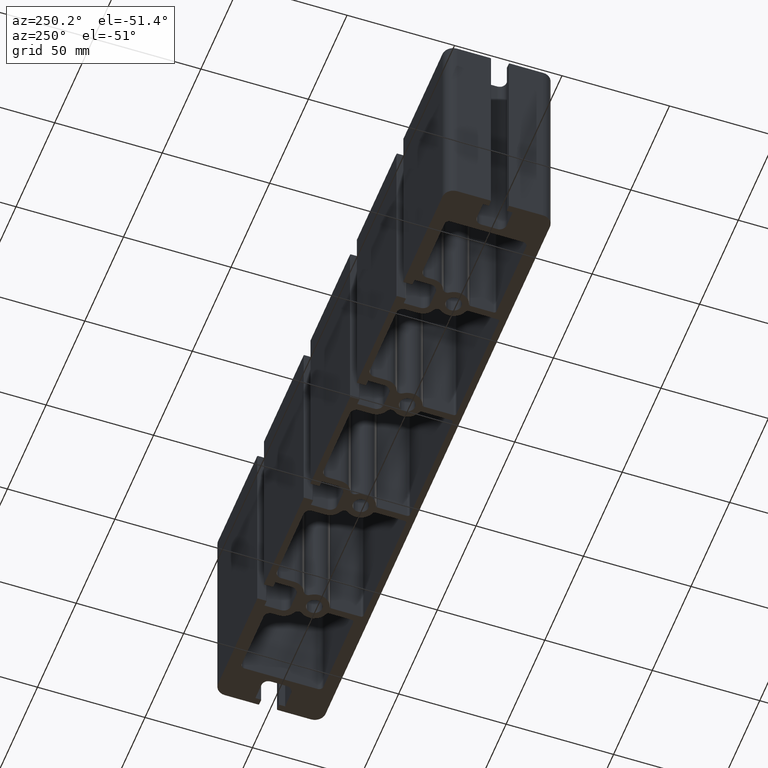
[diagram: clean part render]
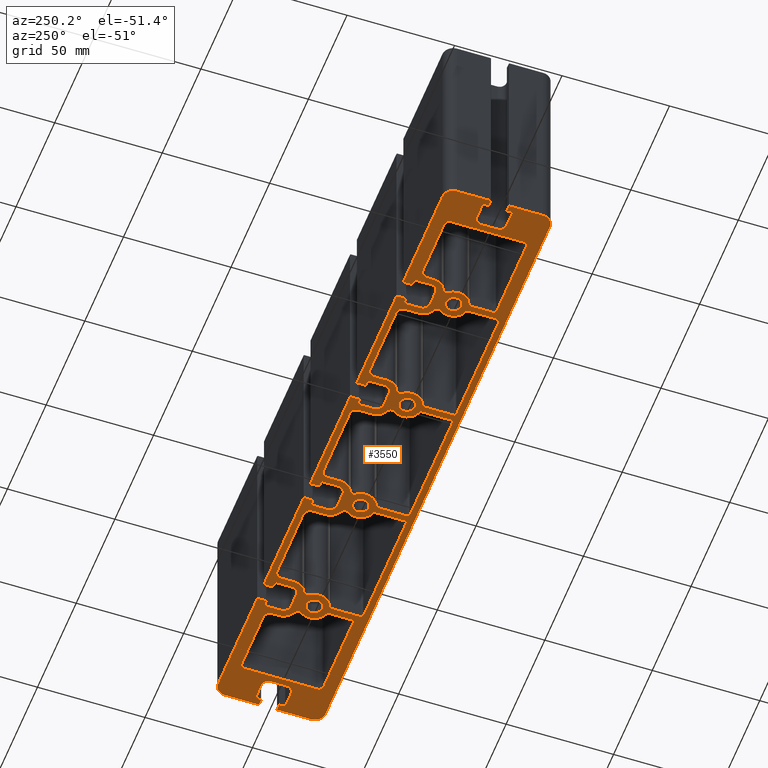
[diagram: same view with one face highlighted and labeled with its STEP entity id]
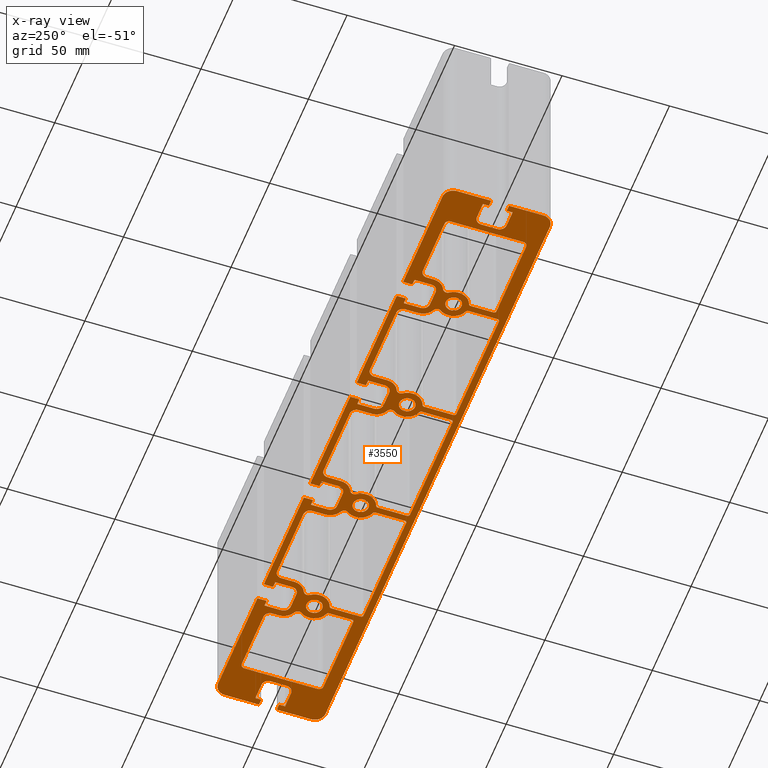
[diagram: x-ray of the same camera — body ghosted, the highlighted face saturated]
A machine part, auxiliary view. The second image highlights one B-rep face of the part: STEP entity #3550.
The next image is the same camera in x-ray: the body ghosted, the highlighted face saturated — about 0% of this face is hidden behind the body in this view.
In plain terms, the highlighted planar face has unit normal (0, 0, 1).
Its self-contained STEP definition (entity closure, byte-faithful):
#28=FACE_BOUND('',#488,.T.);
#29=FACE_BOUND('',#489,.T.);
#30=FACE_BOUND('',#490,.T.);
#31=FACE_BOUND('',#491,.T.);
#32=FACE_BOUND('',#492,.T.);
#33=FACE_BOUND('',#493,.T.);
#34=FACE_BOUND('',#494,.T.);
#35=FACE_BOUND('',#495,.T.);
#36=FACE_BOUND('',#496,.T.);
#118=PLANE('',#3922);
#296=FACE_OUTER_BOUND('',#487,.T.);
#487=EDGE_LOOP('',(#3101,#3102,#3103,#3104,#3105,#3106,#3107,#3108,#3109,
#3110,#3111,#3112,#3113,#3114,#3115,#3116,#3117,#3118,#3119,#3120,#3121,
#3122,#3123,#3124,#3125,#3126,#3127,#3128,#3129,#3130,#3131,#3132,#3133,
#3134,#3135,#3136,#3137,#3138,#3139,#3140,#3141,#3142,#3143,#3144,#3145,
#3146,#3147,#3148,#3149,#3150,#3151,#3152,#3153,#3154,#3155,#3156,#3157,
#3158,#3159,#3160,#3161,#3162,#3163,#3164,#3165,#3166,#3167,#3168,#3169,
#3170,#3171,#3172,#3173,#3174,#3175,#3176,#3177,#3178,#3179,#3180,#3181,
#3182,#3183,#3184,#3185,#3186,#3187,#3188,#3189,#3190,#3191,#3192));
#488=EDGE_LOOP('',(#3193,#3194,#3195,#3196,#3197,#3198,#3199,#3200,#3201,
#3202,#3203,#3204,#3205,#3206,#3207,#3208,#3209,#3210));
#489=EDGE_LOOP('',(#3211,#3212,#3213,#3214,#3215,#3216,#3217,#3218,#3219,
#3220,#3221,#3222,#3223,#3224,#3225,#3226,#3227,#3228));
#490=EDGE_LOOP('',(#3229,#3230,#3231,#3232,#3233,#3234,#3235,#3236,#3237,
#3238,#3239,#3240,#3241,#3242,#3243,#3244,#3245,#3246));
#491=EDGE_LOOP('',(#3247,#3248,#3249,#3250,#3251,#3252,#3253,#3254,#3255,
#3256,#3257,#3258,#3259));
#492=EDGE_LOOP('',(#3260,#3261,#3262,#3263,#3264,#3265,#3266,#3267,#3268,
#3269,#3270,#3271,#3272));
#493=EDGE_LOOP('',(#3273));
#494=EDGE_LOOP('',(#3274));
#495=EDGE_LOOP('',(#3275));
#496=EDGE_LOOP('',(#3276));
#501=LINE('',#5021,#833);
#505=LINE('',#5033,#837);
#509=LINE('',#5045,#841);
#516=LINE('',#5075,#848);
#520=LINE('',#5087,#852);
#524=LINE('',#5099,#856);
#527=LINE('',#5109,#859);
#532=LINE('',#5123,#864);
#536=LINE('',#5135,#868);
#543=LINE('',#5165,#875);
#547=LINE('',#5177,#879);
#551=LINE('',#5189,#883);
#557=LINE('',#5217,#889);
#562=LINE('',#5231,#894);
#566=LINE('',#5243,#898);
#573=LINE('',#5273,#905);
#577=LINE('',#5285,#909);
#581=LINE('',#5297,#913);
#589=LINE('',#5333,#921);
#593=LINE('',#5345,#925);
#600=LINE('',#5375,#932);
#604=LINE('',#5387,#936);
#608=LINE('',#5398,#940);
#610=LINE('',#5403,#942);
#615=LINE('',#5417,#947);
#619=LINE('',#5429,#951);
#626=LINE('',#5459,#958);
#630=LINE('',#5471,#962);
#633=LINE('',#5501,#965);
#638=LINE('',#5515,#970);
#642=LINE('',#5527,#974);
#645=LINE('',#5533,#977);
#649=LINE('',#5545,#981);
#653=LINE('',#5557,#985);
#656=LINE('',#5563,#988);
#660=LINE('',#5575,#992);
#664=LINE('',#5587,#996);
#668=LINE('',#5599,#1000);
#672=LINE('',#5611,#1004);
#675=LINE('',#5617,#1007);
#679=LINE('',#5629,#1011);
#683=LINE('',#5641,#1015);
#686=LINE('',#5647,#1018);
#690=LINE('',#5659,#1022);
#694=LINE('',#5671,#1026);
#698=LINE('',#5683,#1030);
#702=LINE('',#5695,#1034);
#705=LINE('',#5701,#1037);
#709=LINE('',#5713,#1041);
#713=LINE('',#5725,#1045);
#716=LINE('',#5731,#1048);
#720=LINE('',#5743,#1052);
#724=LINE('',#5755,#1056);
#728=LINE('',#5767,#1060);
#732=LINE('',#5779,#1064);
#735=LINE('',#5785,#1067);
#739=LINE('',#5797,#1071);
#743=LINE('',#5809,#1075);
#746=LINE('',#5815,#1078);
#750=LINE('',#5827,#1082);
#754=LINE('',#5839,#1086);
#758=LINE('',#5851,#1090);
#762=LINE('',#5863,#1094);
#766=LINE('',#5875,#1098);
#769=LINE('',#5881,#1101);
#773=LINE('',#5893,#1105);
#777=LINE('',#5905,#1109);
#780=LINE('',#5911,#1112);
#784=LINE('',#5923,#1116);
#788=LINE('',#5935,#1120);
#792=LINE('',#5947,#1124);
#796=LINE('',#5959,#1128);
#800=LINE('',#5971,#1132);
#804=LINE('',#5983,#1136);
#807=LINE('',#5989,#1139);
#811=LINE('',#6001,#1143);
#815=LINE('',#6013,#1147);
#818=LINE('',#6019,#1150);
#822=LINE('',#6031,#1154);
#826=LINE('',#6043,#1158);
#833=VECTOR('',#3949,13.6642996244392);
#837=VECTOR('',#3961,54.9999999999998);
#841=VECTOR('',#3973,13.664299624439);
#848=VECTOR('',#4006,6.10000000000039);
#852=VECTOR('',#4018,34.);
#856=VECTOR('',#4030,6.10000000000035);
#859=VECTOR('',#4041,13.6642996244392);
#864=VECTOR('',#4054,54.9999999999999);
#868=VECTOR('',#4066,13.6642996244387);
#875=VECTOR('',#4099,6.10000000000033);
#879=VECTOR('',#4111,34.0000000000001);
#883=VECTOR('',#4123,6.10000000000046);
#889=VECTOR('',#4155,6.10000000000035);
#894=VECTOR('',#4168,34.0000000000018);
#898=VECTOR('',#4180,6.10000000000035);
#905=VECTOR('',#4213,13.6642996244391);
#909=VECTOR('',#4225,55.0000000000018);
#913=VECTOR('',#4237,13.664299624439);
#921=VECTOR('',#4277,38.4999999999999);
#925=VECTOR('',#4289,10.6642996244388);
#932=VECTOR('',#4322,3.10000000000061);
#936=VECTOR('',#4334,28.0000000000002);
#940=VECTOR('',#4346,34.);
#942=VECTOR('',#4350,34.);
#947=VECTOR('',#4363,28.);
#951=VECTOR('',#4375,3.10000000000029);
#958=VECTOR('',#4408,10.6642996244391);
#962=VECTOR('',#4420,38.5000000000001);
#965=VECTOR('',#4455,50.5499999999993);
#970=VECTOR('',#4468,3.70000000000074);
#974=VECTOR('',#4480,2.44999999999715);
#977=VECTOR('',#4485,7.80000000000101);
#981=VECTOR('',#4497,7.40000000000148);
#985=VECTOR('',#4509,7.80000000000122);
#988=VECTOR('',#4514,2.45000000000068);
#992=VECTOR('',#4526,3.70000000000072);
#996=VECTOR('',#4538,51.1000000000003);
#1000=VECTOR('',#4550,3.70000000000083);
#1004=VECTOR('',#4562,2.44999999999889);
#1007=VECTOR('',#4567,7.80000000000111);
#1011=VECTOR('',#4579,7.40000000000151);
#1015=VECTOR('',#4591,7.80000000000076);
#1018=VECTOR('',#4596,2.44999999999889);
#1022=VECTOR('',#4608,3.70000000000083);
#1026=VECTOR('',#4620,51.0999999999985);
#1030=VECTOR('',#4632,3.70000000000065);
#1034=VECTOR('',#4644,2.44999999999891);
#1037=VECTOR('',#4649,7.80000000000109);
#1041=VECTOR('',#4661,7.40000000000141);
#1045=VECTOR('',#4673,7.8000000000012);
#1048=VECTOR('',#4678,2.44999999999884);
#1052=VECTOR('',#4690,3.70000000000076);
#1056=VECTOR('',#4702,51.0999999999986);
#1060=VECTOR('',#4714,3.70000000000063);
#1064=VECTOR('',#4726,2.44999999999873);
#1067=VECTOR('',#4731,7.80000000000117);
#1071=VECTOR('',#4743,7.40000000000158);
#1075=VECTOR('',#4755,7.80000000000108);
#1078=VECTOR('',#4760,2.44999999999884);
#1082=VECTOR('',#4772,3.70000000000074);
#1086=VECTOR('',#4784,50.5499999999992);
#1090=VECTOR('',#4796,15.5499999999991);
#1094=VECTOR('',#4808,2.40009839999942);
#1098=VECTOR('',#4820,2.44999999999877);
#1101=VECTOR('',#4825,7.80000000000115);
#1105=VECTOR('',#4837,7.40000000000158);
#1109=VECTOR('',#4849,7.80000000000108);
#1112=VECTOR('',#4854,2.45000000000069);
#1116=VECTOR('',#4866,2.40009839999956);
#1120=VECTOR('',#4878,15.5499999999993);
#1124=VECTOR('',#4890,290.000000000002);
#1128=VECTOR('',#4902,15.5499999999992);
#1132=VECTOR('',#4914,2.40009840000136);
#1136=VECTOR('',#4926,2.45000000000069);
#1139=VECTOR('',#4931,7.79999999999927);
#1143=VECTOR('',#4943,7.40000000000151);
#1147=VECTOR('',#4955,7.79999999999934);
#1150=VECTOR('',#4960,2.44999999999893);
#1154=VECTOR('',#4972,2.40009840000125);
#1158=VECTOR('',#4984,15.5499999999993);
#1161=CIRCLE('',#3554,2.);
#1163=CIRCLE('',#3557,6.75000000000194);
#1165=CIRCLE('',#3560,0.99999999999811);
#1167=CIRCLE('',#3564,1.);
#1169=CIRCLE('',#3568,1.);
#1171=CIRCLE('',#3572,1.);
#1173=CIRCLE('',#3575,6.75000000000116);
#1175=CIRCLE('',#3578,2.);
#1177=CIRCLE('',#3581,6.29999999999928);
#1179=CIRCLE('',#3585,3.);
#1181=CIRCLE('',#3589,3.);
#1183=CIRCLE('',#3593,6.3);
#1185=CIRCLE('',#3597,1.);
#1187=CIRCLE('',#3601,1.);
#1189=CIRCLE('',#3605,1.);
#1191=CIRCLE('',#3608,6.7500000000007);
#1193=CIRCLE('',#3611,2.);
#1195=CIRCLE('',#3614,6.29999999999928);
#1197=CIRCLE('',#3618,3.);
#1199=CIRCLE('',#3622,3.);
#1201=CIRCLE('',#3626,6.3);
#1203=CIRCLE('',#3629,2.);
#1205=CIRCLE('',#3632,6.750000000002);
#1207=CIRCLE('',#3635,1.);
#1209=CIRCLE('',#3639,3.);
#1211=CIRCLE('',#3643,3.);
#1213=CIRCLE('',#3647,6.29999999999932);
#1215=CIRCLE('',#3650,2.);
#1217=CIRCLE('',#3653,6.75000000000182);
#1219=CIRCLE('',#3656,1.);
#1221=CIRCLE('',#3660,1.);
#1223=CIRCLE('',#3664,1.);
#1225=CIRCLE('',#3668,1.);
#1227=CIRCLE('',#3671,6.75000000000081);
#1229=CIRCLE('',#3674,2.);
#1231=CIRCLE('',#3677,6.3);
#1233=CIRCLE('',#3680,2.);
#1235=CIRCLE('',#3684,1.);
#1237=CIRCLE('',#3688,1.00000000000257);
#1239=CIRCLE('',#3691,6.7499999999987);
#1241=CIRCLE('',#3694,2.);
#1243=CIRCLE('',#3697,6.3);
#1245=CIRCLE('',#3701,3.);
#1247=CIRCLE('',#3705,2.);
#1249=CIRCLE('',#3710,2.);
#1251=CIRCLE('',#3714,3.);
#1253=CIRCLE('',#3718,6.2999999999993);
#1255=CIRCLE('',#3721,2.);
#1257=CIRCLE('',#3724,6.75000000000072);
#1259=CIRCLE('',#3727,1.);
#1261=CIRCLE('',#3731,1.);
#1263=CIRCLE('',#3735,2.);
#1266=CIRCLE('',#3739,3.65);
#1268=CIRCLE('',#3742,3.65);
#1270=CIRCLE('',#3745,3.65);
#1272=CIRCLE('',#3748,3.6);
#1273=CIRCLE('',#3751,0.3);
#1275=CIRCLE('',#3755,0.3);
#1277=CIRCLE('',#3760,3.19999999999891);
#1279=CIRCLE('',#3764,3.2);
#1281=CIRCLE('',#3769,0.299999999999274);
#1283=CIRCLE('',#3773,0.3);
#1285=CIRCLE('',#3777,0.299999999999272);
#1287=CIRCLE('',#3781,0.3);
#1289=CIRCLE('',#3786,3.2);
#1291=CIRCLE('',#3790,3.20000000000073);
#1293=CIRCLE('',#3795,0.299999999999274);
#1295=CIRCLE('',#3799,0.3);
#1297=CIRCLE('',#3803,0.299999999999272);
#1299=CIRCLE('',#3807,0.3);
#1301=CIRCLE('',#3812,3.20000000000075);
#1303=CIRCLE('',#3816,3.20000000000073);
#1305=CIRCLE('',#3821,0.299999999999274);
#1307=CIRCLE('',#3825,0.3);
#1309=CIRCLE('',#3829,0.299999999999272);
#1311=CIRCLE('',#3833,0.299999999999274);
#1313=CIRCLE('',#3838,3.2);
#1315=CIRCLE('',#3842,3.1999999999989);
#1317=CIRCLE('',#3847,0.300000000001077);
#1319=CIRCLE('',#3851,0.299999999999272);
#1321=CIRCLE('',#3855,5.);
#1323=CIRCLE('',#3859,0.299999999999272);
#1325=CIRCLE('',#3863,0.3);
#1327=CIRCLE('',#3868,3.20000000000075);
#1329=CIRCLE('',#3872,3.20000000000073);
#1331=CIRCLE('',#3877,0.299999999999272);
#1333=CIRCLE('',#3881,0.299999999999265);
#1335=CIRCLE('',#3885,5.);
#1337=CIRCLE('',#3889,5.);
#1339=CIRCLE('',#3893,0.3);
#1341=CIRCLE('',#3897,0.3);
#1343=CIRCLE('',#3902,3.2);
#1345=CIRCLE('',#3906,3.2);
#1347=CIRCLE('',#3911,0.3);
#1349=CIRCLE('',#3915,0.3);
#1351=CIRCLE('',#3919,5.);
#1353=VERTEX_POINT('',#4999);
#1354=VERTEX_POINT('',#5000);
#1357=VERTEX_POINT('',#5008);
#1359=VERTEX_POINT('',#5014);
#1361=VERTEX_POINT('',#5020);
#1363=VERTEX_POINT('',#5026);
#1365=VERTEX_POINT('',#5032);
#1367=VERTEX_POINT('',#5038);
#1369=VERTEX_POINT('',#5044);
#1371=VERTEX_POINT('',#5050);
#1373=VERTEX_POINT('',#5056);
#1375=VERTEX_POINT('',#5062);
#1377=VERTEX_POINT('',#5068);
#1379=VERTEX_POINT('',#5074);
#1381=VERTEX_POINT('',#5080);
#1383=VERTEX_POINT('',#5086);
#1385=VERTEX_POINT('',#5092);
#1387=VERTEX_POINT('',#5098);
#1389=VERTEX_POINT('',#5107);
#1390=VERTEX_POINT('',#5108);
#1393=VERTEX_POINT('',#5116);
#1395=VERTEX_POINT('',#5122);
#1397=VERTEX_POINT('',#5128);
#1399=VERTEX_POINT('',#5134);
#1401=VERTEX_POINT('',#5140);
#1403=VERTEX_POINT('',#5146);
#1405=VERTEX_POINT('',#5152);
#1407=VERTEX_POINT('',#5158);
#1409=VERTEX_POINT('',#5164);
#1411=VERTEX_POINT('',#5170);
#1413=VERTEX_POINT('',#5176);
#1415=VERTEX_POINT('',#5182);
#1417=VERTEX_POINT('',#5188);
#1419=VERTEX_POINT('',#5194);
#1421=VERTEX_POINT('',#5200);
#1423=VERTEX_POINT('',#5206);
#1425=VERTEX_POINT('',#5215);
#1426=VERTEX_POINT('',#5216);
#1429=VERTEX_POINT('',#5224);
#1431=VERTEX_POINT('',#5230);
#1433=VERTEX_POINT('',#5236);
#1435=VERTEX_POINT('',#5242);
#1437=VERTEX_POINT('',#5248);
#1439=VERTEX_POINT('',#5254);
#1441=VERTEX_POINT('',#5260);
#1443=VERTEX_POINT('',#5266);
#1445=VERTEX_POINT('',#5272);
#1447=VERTEX_POINT('',#5278);
#1449=VERTEX_POINT('',#5284);
#1451=VERTEX_POINT('',#5290);
#1453=VERTEX_POINT('',#5296);
#1455=VERTEX_POINT('',#5302);
#1457=VERTEX_POINT('',#5308);
#1459=VERTEX_POINT('',#5314);
#1461=VERTEX_POINT('',#5323);
#1462=VERTEX_POINT('',#5324);
#1465=VERTEX_POINT('',#5332);
#1467=VERTEX_POINT('',#5338);
#1469=VERTEX_POINT('',#5344);
#1471=VERTEX_POINT('',#5350);
#1473=VERTEX_POINT('',#5356);
#1475=VERTEX_POINT('',#5362);
#1477=VERTEX_POINT('',#5368);
#1479=VERTEX_POINT('',#5374);
#1481=VERTEX_POINT('',#5380);
#1483=VERTEX_POINT('',#5386);
#1485=VERTEX_POINT('',#5392);
#1487=VERTEX_POINT('',#5401);
#1488=VERTEX_POINT('',#5402);
#1491=VERTEX_POINT('',#5410);
#1493=VERTEX_POINT('',#5416);
#1495=VERTEX_POINT('',#5422);
#1497=VERTEX_POINT('',#5428);
#1499=VERTEX_POINT('',#5434);
#1501=VERTEX_POINT('',#5440);
#1503=VERTEX_POINT('',#5446);
#1505=VERTEX_POINT('',#5452);
#1507=VERTEX_POINT('',#5458);
#1509=VERTEX_POINT('',#5464);
#1511=VERTEX_POINT('',#5470);
#1514=VERTEX_POINT('',#5481);
#1516=VERTEX_POINT('',#5486);
#1518=VERTEX_POINT('',#5491);
#1520=VERTEX_POINT('',#5496);
#1521=VERTEX_POINT('',#5499);
#1522=VERTEX_POINT('',#5500);
#1525=VERTEX_POINT('',#5508);
#1527=VERTEX_POINT('',#5514);
#1529=VERTEX_POINT('',#5520);
#1531=VERTEX_POINT('',#5526);
#1533=VERTEX_POINT('',#5532);
#1535=VERTEX_POINT('',#5538);
#1537=VERTEX_POINT('',#5544);
#1539=VERTEX_POINT('',#5550);
#1541=VERTEX_POINT('',#5556);
#1543=VERTEX_POINT('',#5562);
#1545=VERTEX_POINT('',#5568);
#1547=VERTEX_POINT('',#5574);
#1549=VERTEX_POINT('',#5580);
#1551=VERTEX_POINT('',#5586);
#1553=VERTEX_POINT('',#5592);
#1555=VERTEX_POINT('',#5598);
#1557=VERTEX_POINT('',#5604);
#1559=VERTEX_POINT('',#5610);
#1561=VERTEX_POINT('',#5616);
#1563=VERTEX_POINT('',#5622);
#1565=VERTEX_POINT('',#5628);
#1567=VERTEX_POINT('',#5634);
#1569=VERTEX_POINT('',#5640);
#1571=VERTEX_POINT('',#5646);
#1573=VERTEX_POINT('',#5652);
#1575=VERTEX_POINT('',#5658);
#1577=VERTEX_POINT('',#5664);
#1579=VERTEX_POINT('',#5670);
#1581=VERTEX_POINT('',#5676);
#1583=VERTEX_POINT('',#5682);
#1585=VERTEX_POINT('',#5688);
#1587=VERTEX_POINT('',#5694);
#1589=VERTEX_POINT('',#5700);
#1591=VERTEX_POINT('',#5706);
#1593=VERTEX_POINT('',#5712);
#1595=VERTEX_POINT('',#5718);
#1597=VERTEX_POINT('',#5724);
#1599=VERTEX_POINT('',#5730);
#1601=VERTEX_POINT('',#5736);
#1603=VERTEX_POINT('',#5742);
#1605=VERTEX_POINT('',#5748);
#1607=VERTEX_POINT('',#5754);
#1609=VERTEX_POINT('',#5760);
#1611=VERTEX_POINT('',#5766);
#1613=VERTEX_POINT('',#5772);
#1615=VERTEX_POINT('',#5778);
#1617=VERTEX_POINT('',#5784);
#1619=VERTEX_POINT('',#5790);
#1621=VERTEX_POINT('',#5796);
#1623=VERTEX_POINT('',#5802);
#1625=VERTEX_POINT('',#5808);
#1627=VERTEX_POINT('',#5814);
#1629=VERTEX_POINT('',#5820);
#1631=VERTEX_POINT('',#5826);
#1633=VERTEX_POINT('',#5832);
#1635=VERTEX_POINT('',#5838);
#1637=VERTEX_POINT('',#5844);
#1639=VERTEX_POINT('',#5850);
#1641=VERTEX_POINT('',#5856);
#1643=VERTEX_POINT('',#5862);
#1645=VERTEX_POINT('',#5868);
#1647=VERTEX_POINT('',#5874);
#1649=VERTEX_POINT('',#5880);
#1651=VERTEX_POINT('',#5886);
#1653=VERTEX_POINT('',#5892);
#1655=VERTEX_POINT('',#5898);
#1657=VERTEX_POINT('',#5904);
#1659=VERTEX_POINT('',#5910);
#1661=VERTEX_POINT('',#5916);
#1663=VERTEX_POINT('',#5922);
#1665=VERTEX_POINT('',#5928);
#1667=VERTEX_POINT('',#5934);
#1669=VERTEX_POINT('',#5940);
#1671=VERTEX_POINT('',#5946);
#1673=VERTEX_POINT('',#5952);
#1675=VERTEX_POINT('',#5958);
#1677=VERTEX_POINT('',#5964);
#1679=VERTEX_POINT('',#5970);
#1681=VERTEX_POINT('',#5976);
#1683=VERTEX_POINT('',#5982);
#1685=VERTEX_POINT('',#5988);
#1687=VERTEX_POINT('',#5994);
#1689=VERTEX_POINT('',#6000);
#1691=VERTEX_POINT('',#6006);
#1693=VERTEX_POINT('',#6012);
#1695=VERTEX_POINT('',#6018);
#1697=VERTEX_POINT('',#6024);
#1699=VERTEX_POINT('',#6030);
#1701=VERTEX_POINT('',#6036);
#1703=VERTEX_POINT('',#6042);
#1705=EDGE_CURVE('',#1353,#1354,#1161,.T.);
#1709=EDGE_CURVE('',#1357,#1353,#1163,.T.);
#1712=EDGE_CURVE('',#1359,#1357,#1165,.T.);
#1715=EDGE_CURVE('',#1361,#1359,#501,.T.);
#1718=EDGE_CURVE('',#1363,#1361,#1167,.T.);
#1721=EDGE_CURVE('',#1365,#1363,#505,.T.);
#1724=EDGE_CURVE('',#1367,#1365,#1169,.T.);
#1727=EDGE_CURVE('',#1369,#1367,#509,.T.);
#1730=EDGE_CURVE('',#1371,#1369,#1171,.T.);
#1733=EDGE_CURVE('',#1373,#1371,#1173,.T.);
#1736=EDGE_CURVE('',#1375,#1373,#1175,.T.);
#1739=EDGE_CURVE('',#1377,#1375,#1177,.T.);
#1742=EDGE_CURVE('',#1379,#1377,#516,.T.);
#1745=EDGE_CURVE('',#1381,#1379,#1179,.T.);
#1748=EDGE_CURVE('',#1383,#1381,#520,.T.);
#1751=EDGE_CURVE('',#1385,#1383,#1181,.T.);
#1754=EDGE_CURVE('',#1387,#1385,#524,.T.);
#1757=EDGE_CURVE('',#1354,#1387,#1183,.T.);
#1759=EDGE_CURVE('',#1389,#1390,#527,.T.);
#1763=EDGE_CURVE('',#1393,#1389,#1185,.T.);
#1766=EDGE_CURVE('',#1395,#1393,#532,.T.);
#1769=EDGE_CURVE('',#1397,#1395,#1187,.T.);
#1772=EDGE_CURVE('',#1399,#1397,#536,.T.);
#1775=EDGE_CURVE('',#1401,#1399,#1189,.T.);
#1778=EDGE_CURVE('',#1403,#1401,#1191,.T.);
#1781=EDGE_CURVE('',#1405,#1403,#1193,.T.);
#1784=EDGE_CURVE('',#1407,#1405,#1195,.T.);
#1787=EDGE_CURVE('',#1409,#1407,#543,.T.);
#1790=EDGE_CURVE('',#1411,#1409,#1197,.T.);
#1793=EDGE_CURVE('',#1413,#1411,#547,.T.);
#1796=EDGE_CURVE('',#1415,#1413,#1199,.T.);
#1799=EDGE_CURVE('',#1417,#1415,#551,.T.);
#1802=EDGE_CURVE('',#1419,#1417,#1201,.T.);
#1805=EDGE_CURVE('',#1421,#1419,#1203,.T.);
#1808=EDGE_CURVE('',#1423,#1421,#1205,.T.);
#1811=EDGE_CURVE('',#1390,#1423,#1207,.T.);
#1813=EDGE_CURVE('',#1425,#1426,#557,.T.);
#1817=EDGE_CURVE('',#1429,#1425,#1209,.T.);
#1820=EDGE_CURVE('',#1431,#1429,#562,.T.);
#1823=EDGE_CURVE('',#1433,#1431,#1211,.T.);
#1826=EDGE_CURVE('',#1435,#1433,#566,.T.);
#1829=EDGE_CURVE('',#1437,#1435,#1213,.T.);
#1832=EDGE_CURVE('',#1439,#1437,#1215,.T.);
#1835=EDGE_CURVE('',#1441,#1439,#1217,.T.);
#1838=EDGE_CURVE('',#1443,#1441,#1219,.T.);
#1841=EDGE_CURVE('',#1445,#1443,#573,.T.);
#1844=EDGE_CURVE('',#1447,#1445,#1221,.T.);
#1847=EDGE_CURVE('',#1449,#1447,#577,.T.);
#1850=EDGE_CURVE('',#1451,#1449,#1223,.T.);
#1853=EDGE_CURVE('',#1453,#1451,#581,.T.);
#1856=EDGE_CURVE('',#1455,#1453,#1225,.T.);
#1859=EDGE_CURVE('',#1457,#1455,#1227,.T.);
#1862=EDGE_CURVE('',#1459,#1457,#1229,.T.);
#1865=EDGE_CURVE('',#1426,#1459,#1231,.T.);
#1867=EDGE_CURVE('',#1461,#1462,#1233,.T.);
#1871=EDGE_CURVE('',#1465,#1461,#589,.T.);
#1874=EDGE_CURVE('',#1467,#1465,#1235,.T.);
#1877=EDGE_CURVE('',#1469,#1467,#593,.T.);
#1880=EDGE_CURVE('',#1471,#1469,#1237,.T.);
#1883=EDGE_CURVE('',#1473,#1471,#1239,.T.);
#1886=EDGE_CURVE('',#1475,#1473,#1241,.T.);
#1889=EDGE_CURVE('',#1477,#1475,#1243,.T.);
#1892=EDGE_CURVE('',#1479,#1477,#600,.T.);
#1895=EDGE_CURVE('',#1481,#1479,#1245,.T.);
#1898=EDGE_CURVE('',#1483,#1481,#604,.T.);
#1901=EDGE_CURVE('',#1485,#1483,#1247,.T.);
#1904=EDGE_CURVE('',#1462,#1485,#608,.T.);
#1906=EDGE_CURVE('',#1487,#1488,#610,.T.);
#1910=EDGE_CURVE('',#1491,#1487,#1249,.T.);
#1913=EDGE_CURVE('',#1493,#1491,#615,.T.);
#1916=EDGE_CURVE('',#1495,#1493,#1251,.T.);
#1919=EDGE_CURVE('',#1497,#1495,#619,.T.);
#1922=EDGE_CURVE('',#1499,#1497,#1253,.T.);
#1925=EDGE_CURVE('',#1501,#1499,#1255,.T.);
#1928=EDGE_CURVE('',#1503,#1501,#1257,.T.);
#1931=EDGE_CURVE('',#1505,#1503,#1259,.T.);
#1934=EDGE_CURVE('',#1507,#1505,#626,.T.);
#1937=EDGE_CURVE('',#1509,#1507,#1261,.T.);
#1940=EDGE_CURVE('',#1511,#1509,#630,.T.);
#1943=EDGE_CURVE('',#1488,#1511,#1263,.T.);
#1946=EDGE_CURVE('',#1514,#1514,#1266,.T.);
#1948=EDGE_CURVE('',#1516,#1516,#1268,.T.);
#1950=EDGE_CURVE('',#1518,#1518,#1270,.T.);
#1952=EDGE_CURVE('',#1520,#1520,#1272,.T.);
#1953=EDGE_CURVE('',#1521,#1522,#633,.T.);
#1957=EDGE_CURVE('',#1525,#1521,#1273,.T.);
#1960=EDGE_CURVE('',#1527,#1525,#638,.T.);
#1963=EDGE_CURVE('',#1529,#1527,#1275,.T.);
#1966=EDGE_CURVE('',#1531,#1529,#642,.T.);
#1969=EDGE_CURVE('',#1533,#1531,#645,.T.);
#1972=EDGE_CURVE('',#1535,#1533,#1277,.T.);
#1975=EDGE_CURVE('',#1537,#1535,#649,.T.);
#1978=EDGE_CURVE('',#1539,#1537,#1279,.T.);
#1981=EDGE_CURVE('',#1541,#1539,#653,.T.);
#1984=EDGE_CURVE('',#1543,#1541,#656,.T.);
#1987=EDGE_CURVE('',#1545,#1543,#1281,.T.);
#1990=EDGE_CURVE('',#1547,#1545,#660,.T.);
#1993=EDGE_CURVE('',#1549,#1547,#1283,.T.);
#1996=EDGE_CURVE('',#1551,#1549,#664,.T.);
#1999=EDGE_CURVE('',#1553,#1551,#1285,.T.);
#2002=EDGE_CURVE('',#1555,#1553,#668,.T.);
#2005=EDGE_CURVE('',#1557,#1555,#1287,.T.);
#2008=EDGE_CURVE('',#1559,#1557,#672,.T.);
#2011=EDGE_CURVE('',#1561,#1559,#675,.T.);
#2014=EDGE_CURVE('',#1563,#1561,#1289,.T.);
#2017=EDGE_CURVE('',#1565,#1563,#679,.T.);
#2020=EDGE_CURVE('',#1567,#1565,#1291,.T.);
#2023=EDGE_CURVE('',#1569,#1567,#683,.T.);
#2026=EDGE_CURVE('',#1571,#1569,#686,.T.);
#2029=EDGE_CURVE('',#1573,#1571,#1293,.T.);
#2032=EDGE_CURVE('',#1575,#1573,#690,.T.);
#2035=EDGE_CURVE('',#1577,#1575,#1295,.T.);
#2038=EDGE_CURVE('',#1579,#1577,#694,.T.);
#2041=EDGE_CURVE('',#1581,#1579,#1297,.T.);
#2044=EDGE_CURVE('',#1583,#1581,#698,.T.);
#2047=EDGE_CURVE('',#1585,#1583,#1299,.T.);
#2050=EDGE_CURVE('',#1587,#1585,#702,.T.);
#2053=EDGE_CURVE('',#1589,#1587,#705,.T.);
#2056=EDGE_CURVE('',#1591,#1589,#1301,.T.);
#2059=EDGE_CURVE('',#1593,#1591,#709,.T.);
#2062=EDGE_CURVE('',#1595,#1593,#1303,.T.);
#2065=EDGE_CURVE('',#1597,#1595,#713,.T.);
#2068=EDGE_CURVE('',#1599,#1597,#716,.T.);
#2071=EDGE_CURVE('',#1601,#1599,#1305,.T.);
#2074=EDGE_CURVE('',#1603,#1601,#720,.T.);
#2077=EDGE_CURVE('',#1605,#1603,#1307,.T.);
#2080=EDGE_CURVE('',#1607,#1605,#724,.T.);
#2083=EDGE_CURVE('',#1609,#1607,#1309,.T.);
#2086=EDGE_CURVE('',#1611,#1609,#728,.T.);
#2089=EDGE_CURVE('',#1613,#1611,#1311,.T.);
#2092=EDGE_CURVE('',#1615,#1613,#732,.T.);
#2095=EDGE_CURVE('',#1617,#1615,#735,.T.);
#2098=EDGE_CURVE('',#1619,#1617,#1313,.T.);
#2101=EDGE_CURVE('',#1621,#1619,#739,.T.);
#2104=EDGE_CURVE('',#1623,#1621,#1315,.T.);
#2107=EDGE_CURVE('',#1625,#1623,#743,.T.);
#2110=EDGE_CURVE('',#1627,#1625,#746,.T.);
#2113=EDGE_CURVE('',#1629,#1627,#1317,.T.);
#2116=EDGE_CURVE('',#1631,#1629,#750,.T.);
#2119=EDGE_CURVE('',#1633,#1631,#1319,.T.);
#2122=EDGE_CURVE('',#1635,#1633,#754,.T.);
#2125=EDGE_CURVE('',#1637,#1635,#1321,.T.);
#2128=EDGE_CURVE('',#1639,#1637,#758,.T.);
#2131=EDGE_CURVE('',#1641,#1639,#1323,.T.);
#2134=EDGE_CURVE('',#1643,#1641,#762,.T.);
#2137=EDGE_CURVE('',#1645,#1643,#1325,.T.);
#2140=EDGE_CURVE('',#1647,#1645,#766,.T.);
#2143=EDGE_CURVE('',#1649,#1647,#769,.T.);
#2146=EDGE_CURVE('',#1651,#1649,#1327,.T.);
#2149=EDGE_CURVE('',#1653,#1651,#773,.T.);
#2152=EDGE_CURVE('',#1655,#1653,#1329,.T.);
#2155=EDGE_CURVE('',#1657,#1655,#777,.T.);
#2158=EDGE_CURVE('',#1659,#1657,#780,.T.);
#2161=EDGE_CURVE('',#1661,#1659,#1331,.T.);
#2164=EDGE_CURVE('',#1663,#1661,#784,.T.);
#2167=EDGE_CURVE('',#1665,#1663,#1333,.T.);
#2170=EDGE_CURVE('',#1667,#1665,#788,.T.);
#2173=EDGE_CURVE('',#1669,#1667,#1335,.T.);
#2176=EDGE_CURVE('',#1671,#1669,#792,.T.);
#2179=EDGE_CURVE('',#1673,#1671,#1337,.T.);
#2182=EDGE_CURVE('',#1675,#1673,#796,.T.);
#2185=EDGE_CURVE('',#1677,#1675,#1339,.T.);
#2188=EDGE_CURVE('',#1679,#1677,#800,.T.);
#2191=EDGE_CURVE('',#1681,#1679,#1341,.T.);
#2194=EDGE_CURVE('',#1683,#1681,#804,.T.);
#2197=EDGE_CURVE('',#1685,#1683,#807,.T.);
#2200=EDGE_CURVE('',#1687,#1685,#1343,.T.);
#2203=EDGE_CURVE('',#1689,#1687,#811,.T.);
#2206=EDGE_CURVE('',#1691,#1689,#1345,.T.);
#2209=EDGE_CURVE('',#1693,#1691,#815,.T.);
#2212=EDGE_CURVE('',#1695,#1693,#818,.T.);
#2215=EDGE_CURVE('',#1697,#1695,#1347,.T.);
#2218=EDGE_CURVE('',#1699,#1697,#822,.T.);
#2221=EDGE_CURVE('',#1701,#1699,#1349,.T.);
#2224=EDGE_CURVE('',#1703,#1701,#826,.T.);
#2227=EDGE_CURVE('',#1522,#1703,#1351,.T.);
#3101=ORIENTED_EDGE('',*,*,#2227,.F.);
#3102=ORIENTED_EDGE('',*,*,#1953,.F.);
#3103=ORIENTED_EDGE('',*,*,#1957,.F.);
#3104=ORIENTED_EDGE('',*,*,#1960,.F.);
#3105=ORIENTED_EDGE('',*,*,#1963,.F.);
#3106=ORIENTED_EDGE('',*,*,#1966,.F.);
#3107=ORIENTED_EDGE('',*,*,#1969,.F.);
#3108=ORIENTED_EDGE('',*,*,#1972,.F.);
#3109=ORIENTED_EDGE('',*,*,#1975,.F.);
#3110=ORIENTED_EDGE('',*,*,#1978,.F.);
#3111=ORIENTED_EDGE('',*,*,#1981,.F.);
#3112=ORIENTED_EDGE('',*,*,#1984,.F.);
#3113=ORIENTED_EDGE('',*,*,#1987,.F.);
#3114=ORIENTED_EDGE('',*,*,#1990,.F.);
#3115=ORIENTED_EDGE('',*,*,#1993,.F.);
#3116=ORIENTED_EDGE('',*,*,#1996,.F.);
#3117=ORIENTED_EDGE('',*,*,#1999,.F.);
#3118=ORIENTED_EDGE('',*,*,#2002,.F.);
#3119=ORIENTED_EDGE('',*,*,#2005,.F.);
#3120=ORIENTED_EDGE('',*,*,#2008,.F.);
#3121=ORIENTED_EDGE('',*,*,#2011,.F.);
#3122=ORIENTED_EDGE('',*,*,#2014,.F.);
#3123=ORIENTED_EDGE('',*,*,#2017,.F.);
#3124=ORIENTED_EDGE('',*,*,#2020,.F.);
#3125=ORIENTED_EDGE('',*,*,#2023,.F.);
#3126=ORIENTED_EDGE('',*,*,#2026,.F.);
#3127=ORIENTED_EDGE('',*,*,#2029,.F.);
#3128=ORIENTED_EDGE('',*,*,#2032,.F.);
#3129=ORIENTED_EDGE('',*,*,#2035,.F.);
#3130=ORIENTED_EDGE('',*,*,#2038,.F.);
#3131=ORIENTED_EDGE('',*,*,#2041,.F.);
#3132=ORIENTED_EDGE('',*,*,#2044,.F.);
#3133=ORIENTED_EDGE('',*,*,#2047,.F.);
#3134=ORIENTED_EDGE('',*,*,#2050,.F.);
#3135=ORIENTED_EDGE('',*,*,#2053,.F.);
#3136=ORIENTED_EDGE('',*,*,#2056,.F.);
#3137=ORIENTED_EDGE('',*,*,#2059,.F.);
#3138=ORIENTED_EDGE('',*,*,#2062,.F.);
#3139=ORIENTED_EDGE('',*,*,#2065,.F.);
#3140=ORIENTED_EDGE('',*,*,#2068,.F.);
#3141=ORIENTED_EDGE('',*,*,#2071,.F.);
#3142=ORIENTED_EDGE('',*,*,#2074,.F.);
#3143=ORIENTED_EDGE('',*,*,#2077,.F.);
#3144=ORIENTED_EDGE('',*,*,#2080,.F.);
#3145=ORIENTED_EDGE('',*,*,#2083,.F.);
#3146=ORIENTED_EDGE('',*,*,#2086,.F.);
#3147=ORIENTED_EDGE('',*,*,#2089,.F.);
#3148=ORIENTED_EDGE('',*,*,#2092,.F.);
#3149=ORIENTED_EDGE('',*,*,#2095,.F.);
#3150=ORIENTED_EDGE('',*,*,#2098,.F.);
#3151=ORIENTED_EDGE('',*,*,#2101,.F.);
#3152=ORIENTED_EDGE('',*,*,#2104,.F.);
#3153=ORIENTED_EDGE('',*,*,#2107,.F.);
#3154=ORIENTED_EDGE('',*,*,#2110,.F.);
#3155=ORIENTED_EDGE('',*,*,#2113,.F.);
#3156=ORIENTED_EDGE('',*,*,#2116,.F.);
#3157=ORIENTED_EDGE('',*,*,#2119,.F.);
#3158=ORIENTED_EDGE('',*,*,#2122,.F.);
#3159=ORIENTED_EDGE('',*,*,#2125,.F.);
#3160=ORIENTED_EDGE('',*,*,#2128,.F.);
#3161=ORIENTED_EDGE('',*,*,#2131,.F.);
#3162=ORIENTED_EDGE('',*,*,#2134,.F.);
#3163=ORIENTED_EDGE('',*,*,#2137,.F.);
#3164=ORIENTED_EDGE('',*,*,#2140,.F.);
#3165=ORIENTED_EDGE('',*,*,#2143,.F.);
#3166=ORIENTED_EDGE('',*,*,#2146,.F.);
#3167=ORIENTED_EDGE('',*,*,#2149,.F.);
#3168=ORIENTED_EDGE('',*,*,#2152,.F.);
#3169=ORIENTED_EDGE('',*,*,#2155,.F.);
#3170=ORIENTED_EDGE('',*,*,#2158,.F.);
#3171=ORIENTED_EDGE('',*,*,#2161,.F.);
#3172=ORIENTED_EDGE('',*,*,#2164,.F.);
#3173=ORIENTED_EDGE('',*,*,#2167,.F.);
#3174=ORIENTED_EDGE('',*,*,#2170,.F.);
#3175=ORIENTED_EDGE('',*,*,#2173,.F.);
#3176=ORIENTED_EDGE('',*,*,#2176,.F.);
#3177=ORIENTED_EDGE('',*,*,#2179,.F.);
#3178=ORIENTED_EDGE('',*,*,#2182,.F.);
#3179=ORIENTED_EDGE('',*,*,#2185,.F.);
#3180=ORIENTED_EDGE('',*,*,#2188,.F.);
#3181=ORIENTED_EDGE('',*,*,#2191,.F.);
#3182=ORIENTED_EDGE('',*,*,#2194,.F.);
#3183=ORIENTED_EDGE('',*,*,#2197,.F.);
#3184=ORIENTED_EDGE('',*,*,#2200,.F.);
#3185=ORIENTED_EDGE('',*,*,#2203,.F.);
#3186=ORIENTED_EDGE('',*,*,#2206,.F.);
#3187=ORIENTED_EDGE('',*,*,#2209,.F.);
#3188=ORIENTED_EDGE('',*,*,#2212,.F.);
#3189=ORIENTED_EDGE('',*,*,#2215,.F.);
#3190=ORIENTED_EDGE('',*,*,#2218,.F.);
#3191=ORIENTED_EDGE('',*,*,#2221,.F.);
#3192=ORIENTED_EDGE('',*,*,#2224,.F.);
#3193=ORIENTED_EDGE('',*,*,#1705,.T.);
#3194=ORIENTED_EDGE('',*,*,#1757,.T.);
#3195=ORIENTED_EDGE('',*,*,#1754,.T.);
#3196=ORIENTED_EDGE('',*,*,#1751,.T.);
#3197=ORIENTED_EDGE('',*,*,#1748,.T.);
#3198=ORIENTED_EDGE('',*,*,#1745,.T.);
#3199=ORIENTED_EDGE('',*,*,#1742,.T.);
#3200=ORIENTED_EDGE('',*,*,#1739,.T.);
#3201=ORIENTED_EDGE('',*,*,#1736,.T.);
#3202=ORIENTED_EDGE('',*,*,#1733,.T.);
#3203=ORIENTED_EDGE('',*,*,#1730,.T.);
#3204=ORIENTED_EDGE('',*,*,#1727,.T.);
#3205=ORIENTED_EDGE('',*,*,#1724,.T.);
#3206=ORIENTED_EDGE('',*,*,#1721,.T.);
#3207=ORIENTED_EDGE('',*,*,#1718,.T.);
#3208=ORIENTED_EDGE('',*,*,#1715,.T.);
#3209=ORIENTED_EDGE('',*,*,#1712,.T.);
#3210=ORIENTED_EDGE('',*,*,#1709,.T.);
#3211=ORIENTED_EDGE('',*,*,#1759,.T.);
#3212=ORIENTED_EDGE('',*,*,#1811,.T.);
#3213=ORIENTED_EDGE('',*,*,#1808,.T.);
#3214=ORIENTED_EDGE('',*,*,#1805,.T.);
#3215=ORIENTED_EDGE('',*,*,#1802,.T.);
#3216=ORIENTED_EDGE('',*,*,#1799,.T.);
#3217=ORIENTED_EDGE('',*,*,#1796,.T.);
#3218=ORIENTED_EDGE('',*,*,#1793,.T.);
#3219=ORIENTED_EDGE('',*,*,#1790,.T.);
#3220=ORIENTED_EDGE('',*,*,#1787,.T.);
#3221=ORIENTED_EDGE('',*,*,#1784,.T.);
#3222=ORIENTED_EDGE('',*,*,#1781,.T.);
#3223=ORIENTED_EDGE('',*,*,#1778,.T.);
#3224=ORIENTED_EDGE('',*,*,#1775,.T.);
#3225=ORIENTED_EDGE('',*,*,#1772,.T.);
#3226=ORIENTED_EDGE('',*,*,#1769,.T.);
#3227=ORIENTED_EDGE('',*,*,#1766,.T.);
#3228=ORIENTED_EDGE('',*,*,#1763,.T.);
#3229=ORIENTED_EDGE('',*,*,#1813,.T.);
#3230=ORIENTED_EDGE('',*,*,#1865,.T.);
#3231=ORIENTED_EDGE('',*,*,#1862,.T.);
#3232=ORIENTED_EDGE('',*,*,#1859,.T.);
#3233=ORIENTED_EDGE('',*,*,#1856,.T.);
#3234=ORIENTED_EDGE('',*,*,#1853,.T.);
#3235=ORIENTED_EDGE('',*,*,#1850,.T.);
#3236=ORIENTED_EDGE('',*,*,#1847,.T.);
#3237=ORIENTED_EDGE('',*,*,#1844,.T.);
#3238=ORIENTED_EDGE('',*,*,#1841,.T.);
#3239=ORIENTED_EDGE('',*,*,#1838,.T.);
#3240=ORIENTED_EDGE('',*,*,#1835,.T.);
#3241=ORIENTED_EDGE('',*,*,#1832,.T.);
#3242=ORIENTED_EDGE('',*,*,#1829,.T.);
#3243=ORIENTED_EDGE('',*,*,#1826,.T.);
#3244=ORIENTED_EDGE('',*,*,#1823,.T.);
#3245=ORIENTED_EDGE('',*,*,#1820,.T.);
#3246=ORIENTED_EDGE('',*,*,#1817,.T.);
#3247=ORIENTED_EDGE('',*,*,#1867,.T.);
#3248=ORIENTED_EDGE('',*,*,#1904,.T.);
#3249=ORIENTED_EDGE('',*,*,#1901,.T.);
#3250=ORIENTED_EDGE('',*,*,#1898,.T.);
#3251=ORIENTED_EDGE('',*,*,#1895,.T.);
#3252=ORIENTED_EDGE('',*,*,#1892,.T.);
#3253=ORIENTED_EDGE('',*,*,#1889,.T.);
#3254=ORIENTED_EDGE('',*,*,#1886,.T.);
#3255=ORIENTED_EDGE('',*,*,#1883,.T.);
#3256=ORIENTED_EDGE('',*,*,#1880,.T.);
#3257=ORIENTED_EDGE('',*,*,#1877,.T.);
#3258=ORIENTED_EDGE('',*,*,#1874,.T.);
#3259=ORIENTED_EDGE('',*,*,#1871,.T.);
#3260=ORIENTED_EDGE('',*,*,#1906,.T.);
#3261=ORIENTED_EDGE('',*,*,#1943,.T.);
#3262=ORIENTED_EDGE('',*,*,#1940,.T.);
#3263=ORIENTED_EDGE('',*,*,#1937,.T.);
#3264=ORIENTED_EDGE('',*,*,#1934,.T.);
#3265=ORIENTED_EDGE('',*,*,#1931,.T.);
#3266=ORIENTED_EDGE('',*,*,#1928,.T.);
#3267=ORIENTED_EDGE('',*,*,#1925,.T.);
#3268=ORIENTED_EDGE('',*,*,#1922,.T.);
#3269=ORIENTED_EDGE('',*,*,#1919,.T.);
#3270=ORIENTED_EDGE('',*,*,#1916,.T.);
#3271=ORIENTED_EDGE('',*,*,#1913,.T.);
#3272=ORIENTED_EDGE('',*,*,#1910,.T.);
#3273=ORIENTED_EDGE('',*,*,#1946,.T.);
#3274=ORIENTED_EDGE('',*,*,#1948,.T.);
#3275=ORIENTED_EDGE('',*,*,#1950,.T.);
#3276=ORIENTED_EDGE('',*,*,#1952,.T.);
#3550=ADVANCED_FACE('',(#296,#28,#29,#30,#31,#32,#33,#34,#35,#36),#118,
 .F.);
#3554=AXIS2_PLACEMENT_3D('',#5001,#3927,#3928);
#3557=AXIS2_PLACEMENT_3D('',#5009,#3935,#3936);
#3560=AXIS2_PLACEMENT_3D('',#5015,#3942,#3943);
#3564=AXIS2_PLACEMENT_3D('',#5027,#3954,#3955);
#3568=AXIS2_PLACEMENT_3D('',#5039,#3966,#3967);
#3572=AXIS2_PLACEMENT_3D('',#5051,#3978,#3979);
#3575=AXIS2_PLACEMENT_3D('',#5057,#3985,#3986);
#3578=AXIS2_PLACEMENT_3D('',#5063,#3992,#3993);
#3581=AXIS2_PLACEMENT_3D('',#5069,#3999,#4000);
#3585=AXIS2_PLACEMENT_3D('',#5081,#4011,#4012);
#3589=AXIS2_PLACEMENT_3D('',#5093,#4023,#4024);
#3593=AXIS2_PLACEMENT_3D('',#5104,#4035,#4036);
#3597=AXIS2_PLACEMENT_3D('',#5117,#4047,#4048);
#3601=AXIS2_PLACEMENT_3D('',#5129,#4059,#4060);
#3605=AXIS2_PLACEMENT_3D('',#5141,#4071,#4072);
#3608=AXIS2_PLACEMENT_3D('',#5147,#4078,#4079);
#3611=AXIS2_PLACEMENT_3D('',#5153,#4085,#4086);
#3614=AXIS2_PLACEMENT_3D('',#5159,#4092,#4093);
#3618=AXIS2_PLACEMENT_3D('',#5171,#4104,#4105);
#3622=AXIS2_PLACEMENT_3D('',#5183,#4116,#4117);
#3626=AXIS2_PLACEMENT_3D('',#5195,#4128,#4129);
#3629=AXIS2_PLACEMENT_3D('',#5201,#4135,#4136);
#3632=AXIS2_PLACEMENT_3D('',#5207,#4142,#4143);
#3635=AXIS2_PLACEMENT_3D('',#5212,#4149,#4150);
#3639=AXIS2_PLACEMENT_3D('',#5225,#4161,#4162);
#3643=AXIS2_PLACEMENT_3D('',#5237,#4173,#4174);
#3647=AXIS2_PLACEMENT_3D('',#5249,#4185,#4186);
#3650=AXIS2_PLACEMENT_3D('',#5255,#4192,#4193);
#3653=AXIS2_PLACEMENT_3D('',#5261,#4199,#4200);
#3656=AXIS2_PLACEMENT_3D('',#5267,#4206,#4207);
#3660=AXIS2_PLACEMENT_3D('',#5279,#4218,#4219);
#3664=AXIS2_PLACEMENT_3D('',#5291,#4230,#4231);
#3668=AXIS2_PLACEMENT_3D('',#5303,#4242,#4243);
#3671=AXIS2_PLACEMENT_3D('',#5309,#4249,#4250);
#3674=AXIS2_PLACEMENT_3D('',#5315,#4256,#4257);
#3677=AXIS2_PLACEMENT_3D('',#5320,#4263,#4264);
#3680=AXIS2_PLACEMENT_3D('',#5325,#4269,#4270);
#3684=AXIS2_PLACEMENT_3D('',#5339,#4282,#4283);
#3688=AXIS2_PLACEMENT_3D('',#5351,#4294,#4295);
#3691=AXIS2_PLACEMENT_3D('',#5357,#4301,#4302);
#3694=AXIS2_PLACEMENT_3D('',#5363,#4308,#4309);
#3697=AXIS2_PLACEMENT_3D('',#5369,#4315,#4316);
#3701=AXIS2_PLACEMENT_3D('',#5381,#4327,#4328);
#3705=AXIS2_PLACEMENT_3D('',#5393,#4339,#4340);
#3710=AXIS2_PLACEMENT_3D('',#5411,#4356,#4357);
#3714=AXIS2_PLACEMENT_3D('',#5423,#4368,#4369);
#3718=AXIS2_PLACEMENT_3D('',#5435,#4380,#4381);
#3721=AXIS2_PLACEMENT_3D('',#5441,#4387,#4388);
#3724=AXIS2_PLACEMENT_3D('',#5447,#4394,#4395);
#3727=AXIS2_PLACEMENT_3D('',#5453,#4401,#4402);
#3731=AXIS2_PLACEMENT_3D('',#5465,#4413,#4414);
#3735=AXIS2_PLACEMENT_3D('',#5476,#4425,#4426);
#3739=AXIS2_PLACEMENT_3D('',#5482,#4433,#4434);
#3742=AXIS2_PLACEMENT_3D('',#5487,#4439,#4440);
#3745=AXIS2_PLACEMENT_3D('',#5492,#4445,#4446);
#3748=AXIS2_PLACEMENT_3D('',#5497,#4451,#4452);
#3751=AXIS2_PLACEMENT_3D('',#5509,#4461,#4462);
#3755=AXIS2_PLACEMENT_3D('',#5521,#4473,#4474);
#3760=AXIS2_PLACEMENT_3D('',#5539,#4490,#4491);
#3764=AXIS2_PLACEMENT_3D('',#5551,#4502,#4503);
#3769=AXIS2_PLACEMENT_3D('',#5569,#4519,#4520);
#3773=AXIS2_PLACEMENT_3D('',#5581,#4531,#4532);
#3777=AXIS2_PLACEMENT_3D('',#5593,#4543,#4544);
#3781=AXIS2_PLACEMENT_3D('',#5605,#4555,#4556);
#3786=AXIS2_PLACEMENT_3D('',#5623,#4572,#4573);
#3790=AXIS2_PLACEMENT_3D('',#5635,#4584,#4585);
#3795=AXIS2_PLACEMENT_3D('',#5653,#4601,#4602);
#3799=AXIS2_PLACEMENT_3D('',#5665,#4613,#4614);
#3803=AXIS2_PLACEMENT_3D('',#5677,#4625,#4626);
#3807=AXIS2_PLACEMENT_3D('',#5689,#4637,#4638);
#3812=AXIS2_PLACEMENT_3D('',#5707,#4654,#4655);
#3816=AXIS2_PLACEMENT_3D('',#5719,#4666,#4667);
#3821=AXIS2_PLACEMENT_3D('',#5737,#4683,#4684);
#3825=AXIS2_PLACEMENT_3D('',#5749,#4695,#4696);
#3829=AXIS2_PLACEMENT_3D('',#5761,#4707,#4708);
#3833=AXIS2_PLACEMENT_3D('',#5773,#4719,#4720);
#3838=AXIS2_PLACEMENT_3D('',#5791,#4736,#4737);
#3842=AXIS2_PLACEMENT_3D('',#5803,#4748,#4749);
#3847=AXIS2_PLACEMENT_3D('',#5821,#4765,#4766);
#3851=AXIS2_PLACEMENT_3D('',#5833,#4777,#4778);
#3855=AXIS2_PLACEMENT_3D('',#5845,#4789,#4790);
#3859=AXIS2_PLACEMENT_3D('',#5857,#4801,#4802);
#3863=AXIS2_PLACEMENT_3D('',#5869,#4813,#4814);
#3868=AXIS2_PLACEMENT_3D('',#5887,#4830,#4831);
#3872=AXIS2_PLACEMENT_3D('',#5899,#4842,#4843);
#3877=AXIS2_PLACEMENT_3D('',#5917,#4859,#4860);
#3881=AXIS2_PLACEMENT_3D('',#5929,#4871,#4872);
#3885=AXIS2_PLACEMENT_3D('',#5941,#4883,#4884);
#3889=AXIS2_PLACEMENT_3D('',#5953,#4895,#4896);
#3893=AXIS2_PLACEMENT_3D('',#5965,#4907,#4908);
#3897=AXIS2_PLACEMENT_3D('',#5977,#4919,#4920);
#3902=AXIS2_PLACEMENT_3D('',#5995,#4936,#4937);
#3906=AXIS2_PLACEMENT_3D('',#6007,#4948,#4949);
#3911=AXIS2_PLACEMENT_3D('',#6025,#4965,#4966);
#3915=AXIS2_PLACEMENT_3D('',#6037,#4977,#4978);
#3919=AXIS2_PLACEMENT_3D('',#6048,#4989,#4990);
#3922=AXIS2_PLACEMENT_3D('',#6051,#4995,#4996);
#3927=DIRECTION('center_axis',(0.,0.,1.));
#3928=DIRECTION('ref_axis',(-0.797777487397277,0.602951972052574,0.));
#3935=DIRECTION('center_axis',(0.,0.,-1.));
#3936=DIRECTION('ref_axis',(-0.797777487396463,0.60295197205365,0.));
#3942=DIRECTION('center_axis',(0.,0.,1.));
#3943=DIRECTION('ref_axis',(-1.,5.3290705182108E-14,0.));
#3949=DIRECTION('',(-1.26099850089386E-13,1.,0.));
#3954=DIRECTION('center_axis',(0.,0.,1.));
#3955=DIRECTION('ref_axis',(0.,1.,0.));
#3961=DIRECTION('',(1.,6.45947941600093E-16,0.));
#3966=DIRECTION('center_axis',(0.,0.,1.));
#3967=DIRECTION('ref_axis',(1.,-3.55271367880051E-14,0.));
#3973=DIRECTION('',(2.43749710224333E-16,-1.,0.));
#3978=DIRECTION('center_axis',(0.,0.,1.));
#3979=DIRECTION('ref_axis',(0.322580645174213,-0.9465419839389,0.));
#3985=DIRECTION('center_axis',(0.,0.,-1.));
#3986=DIRECTION('ref_axis',(0.322580645159254,-0.946541983943998,0.));
#3992=DIRECTION('center_axis',(0.,0.,1.));
#3993=DIRECTION('ref_axis',(0.395247351173041,-0.91857472825606,0.));
#3999=DIRECTION('center_axis',(0.,0.,-1.));
#4000=DIRECTION('ref_axis',(0.395247351170781,-0.918574728257032,0.));
#4006=DIRECTION('',(-5.27810946133238E-15,-1.,0.));
#4011=DIRECTION('center_axis',(0.,0.,1.));
#4012=DIRECTION('ref_axis',(3.33066907387546E-14,-1.,0.));
#4018=DIRECTION('',(-1.,-3.13474736364751E-15,0.));
#4023=DIRECTION('center_axis',(0.,0.,1.));
#4024=DIRECTION('ref_axis',(-1.,-4.14483262526709E-14,0.));
#4030=DIRECTION('',(1.1939447609083E-13,1.,0.));
#4035=DIRECTION('center_axis',(0.,0.,-1.));
#4036=DIRECTION('ref_axis',(-1.,8.45884209238221E-15,0.));
#4041=DIRECTION('',(1.81999783634167E-14,1.,0.));
#4047=DIRECTION('center_axis',(0.,0.,1.));
#4048=DIRECTION('ref_axis',(-3.5527136788007E-14,-1.,0.));
#4054=DIRECTION('',(1.,2.26081779560032E-15,0.));
#4059=DIRECTION('center_axis',(0.,0.,1.));
#4060=DIRECTION('ref_axis',(-1.,2.84217094304031E-13,0.));
#4066=DIRECTION('',(-8.44998995444373E-15,-1.,0.));
#4071=DIRECTION('center_axis',(0.,0.,1.));
#4072=DIRECTION('ref_axis',(-0.322580645159309,0.946541983943979,0.));
#4078=DIRECTION('center_axis',(0.,0.,-1.));
#4079=DIRECTION('ref_axis',(-0.322580645161597,0.946541983943199,0.));
#4085=DIRECTION('center_axis',(0.,0.,1.));
#4086=DIRECTION('ref_axis',(-0.395247351171101,0.918574728256895,0.));
#4092=DIRECTION('center_axis',(0.,0.,-1.));
#4093=DIRECTION('ref_axis',(-0.3952473511711,0.918574728256895,0.));
#4099=DIRECTION('',(-2.91206039245927E-14,-1.,0.));
#4104=DIRECTION('center_axis',(0.,0.,1.));
#4105=DIRECTION('ref_axis',(-3.55271367880054E-14,1.,0.));
#4111=DIRECTION('',(-1.,-1.56737368182375E-15,0.));
#4116=DIRECTION('center_axis',(0.,0.,1.));
#4117=DIRECTION('ref_axis',(1.,2.36847578586704E-14,0.));
#4123=DIRECTION('',(1.25218596875746E-13,1.,0.));
#4128=DIRECTION('center_axis',(0.,0.,-1.));
#4129=DIRECTION('ref_axis',(1.,3.38353683695285E-14,0.));
#4135=DIRECTION('center_axis',(0.,0.,1.));
#4136=DIRECTION('ref_axis',(0.79777748739451,-0.602951972056235,0.));
#4142=DIRECTION('center_axis',(0.,0.,-1.));
#4143=DIRECTION('ref_axis',(0.797777487397473,-0.602951972052314,0.));
#4149=DIRECTION('center_axis',(0.,0.,1.));
#4150=DIRECTION('ref_axis',(1.,1.06581410364015E-13,0.));
#4155=DIRECTION('',(1.26674627071978E-13,-1.,0.));
#4161=DIRECTION('center_axis',(0.,0.,1.));
#4162=DIRECTION('ref_axis',(8.88178419700123E-15,-1.,0.));
#4168=DIRECTION('',(-1.,-3.65720525758855E-15,0.));
#4173=DIRECTION('center_axis',(0.,0.,1.));
#4174=DIRECTION('ref_axis',(-1.,-2.36847578586691E-14,0.));
#4180=DIRECTION('',(1.54703208349398E-13,1.,0.));
#4185=DIRECTION('center_axis',(0.,0.,-1.));
#4186=DIRECTION('ref_axis',(-1.,1.40980701539718E-14,0.));
#4192=DIRECTION('center_axis',(0.,0.,1.));
#4193=DIRECTION('ref_axis',(-0.797777487397298,0.602951972052546,0.));
#4199=DIRECTION('center_axis',(0.,0.,-1.));
#4200=DIRECTION('ref_axis',(-0.797777487396605,0.602951972053463,0.));
#4206=DIRECTION('center_axis',(0.,0.,1.));
#4207=DIRECTION('ref_axis',(-1.,3.37507799485984E-13,0.));
#4213=DIRECTION('',(1.14562363805436E-14,1.,0.));
#4218=DIRECTION('center_axis',(0.,0.,1.));
#4219=DIRECTION('ref_axis',(3.55271367880051E-14,1.,0.));
#4225=DIRECTION('',(1.,-9.68921912400105E-16,0.));
#4230=DIRECTION('center_axis',(0.,0.,1.));
#4231=DIRECTION('ref_axis',(1.,-8.88178419700128E-14,0.));
#4237=DIRECTION('',(-4.35499482267477E-14,-1.,0.));
#4242=DIRECTION('center_axis',(0.,0.,1.));
#4243=DIRECTION('ref_axis',(0.322580645174139,-0.946541983938925,0.));
#4249=DIRECTION('center_axis',(0.,0.,-1.));
#4250=DIRECTION('ref_axis',(0.322580645159199,-0.946541983944016,0.));
#4256=DIRECTION('center_axis',(0.,0.,1.));
#4257=DIRECTION('ref_axis',(0.395247351172908,-0.918574728256118,0.));
#4263=DIRECTION('center_axis',(0.,0.,-1.));
#4264=DIRECTION('ref_axis',(0.395247351170787,-0.91857472825703,0.));
#4269=DIRECTION('center_axis',(0.,0.,1.));
#4270=DIRECTION('ref_axis',(1.77635683940026E-14,1.,0.));
#4277=DIRECTION('',(1.,0.,0.));
#4282=DIRECTION('center_axis',(0.,0.,1.));
#4283=DIRECTION('ref_axis',(1.,-7.1054273576009E-14,0.));
#4289=DIRECTION('',(2.48189921881124E-13,-1.,0.));
#4294=DIRECTION('center_axis',(0.,0.,1.));
#4295=DIRECTION('ref_axis',(0.322580645159414,-0.946541983943943,0.));
#4301=DIRECTION('center_axis',(0.,0.,-1.));
#4302=DIRECTION('ref_axis',(0.322580645161343,-0.946541983943286,0.));
#4308=DIRECTION('center_axis',(0.,0.,1.));
#4309=DIRECTION('ref_axis',(0.395247351170784,-0.918574728257031,0.));
#4315=DIRECTION('center_axis',(0.,0.,-1.));
#4316=DIRECTION('ref_axis',(0.395247351171151,-0.918574728256873,0.));
#4322=DIRECTION('',(2.29207334116116E-13,-1.,0.));
#4327=DIRECTION('center_axis',(0.,0.,1.));
#4328=DIRECTION('ref_axis',(2.36847578586697E-14,-1.,0.));
#4334=DIRECTION('',(-1.,3.80647894157194E-15,0.));
#4339=DIRECTION('center_axis',(0.,0.,1.));
#4340=DIRECTION('ref_axis',(-1.,-1.77635683940023E-14,0.));
#4346=DIRECTION('',(0.,1.,0.));
#4350=DIRECTION('',(-5.2245789394125E-16,-1.,0.));
#4356=DIRECTION('center_axis',(0.,0.,1.));
#4357=DIRECTION('ref_axis',(1.77635683940026E-14,1.,0.));
#4363=DIRECTION('',(-1.,6.34413156928661E-16,0.));
#4368=DIRECTION('center_axis',(0.,0.,1.));
#4369=DIRECTION('ref_axis',(1.,-3.55271367880064E-14,0.));
#4375=DIRECTION('',(-5.7301833529035E-15,1.,0.));
#4380=DIRECTION('center_axis',(0.,0.,-1.));
#4381=DIRECTION('ref_axis',(1.,5.63922806158853E-15,0.));
#4387=DIRECTION('center_axis',(0.,0.,1.));
#4388=DIRECTION('ref_axis',(0.797777487394259,-0.602951972056566,0.));
#4394=DIRECTION('center_axis',(0.,0.,-1.));
#4395=DIRECTION('ref_axis',(0.797777487397391,-0.602951972052423,0.));
#4401=DIRECTION('center_axis',(0.,0.,1.));
#4402=DIRECTION('ref_axis',(1.,0.,0.));
#4408=DIRECTION('',(3.33140834739755E-14,1.,0.));
#4413=DIRECTION('center_axis',(0.,0.,1.));
#4414=DIRECTION('ref_axis',(2.66453525910043E-14,-1.,0.));
#4420=DIRECTION('',(1.,9.22782773714414E-16,0.));
#4425=DIRECTION('center_axis',(0.,0.,1.));
#4426=DIRECTION('ref_axis',(-1.,0.,0.));
#4433=DIRECTION('center_axis',(0.,0.,1.));
#4434=DIRECTION('ref_axis',(-1.,0.,0.));
#4439=DIRECTION('center_axis',(0.,0.,1.));
#4440=DIRECTION('ref_axis',(-1.,0.,0.));
#4445=DIRECTION('center_axis',(0.,0.,1.));
#4446=DIRECTION('ref_axis',(-1.,0.,0.));
#4451=DIRECTION('center_axis',(0.,0.,1.));
#4452=DIRECTION('ref_axis',(-1.,0.,0.));
#4455=DIRECTION('',(-1.,-1.37048302149576E-14,0.));
#4461=DIRECTION('center_axis',(0.,0.,1.));
#4462=DIRECTION('ref_axis',(1.,1.77635683940092E-13,0.));
#4468=DIRECTION('',(-3.12062688002684E-13,1.,0.));
#4473=DIRECTION('center_axis',(0.,0.,1.));
#4474=DIRECTION('ref_axis',(-3.55271367880058E-12,-1.,0.));
#4480=DIRECTION('',(1.,-2.90017443167725E-13,0.));
#4485=DIRECTION('',(2.25460675770003E-13,1.,0.));
#4490=DIRECTION('center_axis',(0.,0.,-1.));
#4491=DIRECTION('ref_axis',(1.,1.6653345369383E-14,0.));
#4497=DIRECTION('',(-1.,1.58431826216747E-13,0.));
#4502=DIRECTION('center_axis',(0.,0.,-1.));
#4503=DIRECTION('ref_axis',(2.4980018054066E-14,1.,0.));
#4509=DIRECTION('',(-7.62922488716655E-14,-1.,0.));
#4514=DIRECTION('',(1.,1.45008721583654E-14,0.));
#4519=DIRECTION('center_axis',(0.,0.,1.));
#4520=DIRECTION('ref_axis',(-1.,-2.96059473234091E-13,0.));
#4526=DIRECTION('',(2.6405304369458E-14,-1.,0.));
#4531=DIRECTION('center_axis',(0.,0.,1.));
#4532=DIRECTION('ref_axis',(-1.48029736616989E-13,1.,0.));
#4538=DIRECTION('',(-1.,1.73811823816071E-15,0.));
#4543=DIRECTION('center_axis',(0.,0.,1.));
#4544=DIRECTION('ref_axis',(1.,0.,0.));
#4550=DIRECTION('',(-2.01640506094037E-13,1.,0.));
#4555=DIRECTION('center_axis',(0.,0.,1.));
#4556=DIRECTION('ref_axis',(1.77635683940008E-13,-1.,0.));
#4562=DIRECTION('',(1.,-2.90017443167519E-13,0.));
#4567=DIRECTION('',(2.30015436896666E-13,1.,0.));
#4572=DIRECTION('center_axis',(0.,0.,-1.));
#4573=DIRECTION('ref_axis',(1.,-1.11022302462516E-14,0.));
#4579=DIRECTION('',(-1.,1.00820253047021E-13,0.));
#4584=DIRECTION('center_axis',(0.,0.,-1.));
#4585=DIRECTION('ref_axis',(6.59194920871036E-15,1.,0.));
#4591=DIRECTION('',(2.48234481403344E-13,-1.,0.));
#4596=DIRECTION('',(1.,-4.35026164751279E-14,0.));
#4601=DIRECTION('center_axis',(0.,0.,1.));
#4602=DIRECTION('ref_axis',(-1.,-2.96059473234091E-13,0.));
#4608=DIRECTION('',(4.80096443081042E-13,-1.,0.));
#4613=DIRECTION('center_axis',(0.,0.,1.));
#4614=DIRECTION('ref_axis',(3.82656869154145E-12,1.,0.));
#4620=DIRECTION('',(-1.,1.46001932005504E-14,0.));
#4625=DIRECTION('center_axis',(0.,0.,1.));
#4626=DIRECTION('ref_axis',(1.,1.77635683940471E-13,0.));
#4632=DIRECTION('',(-2.16043399386479E-13,1.,0.));
#4637=DIRECTION('center_axis',(0.,0.,1.));
#4638=DIRECTION('ref_axis',(0.,-1.,0.));
#4644=DIRECTION('',(1.,-3.19019187484269E-13,0.));
#4649=DIRECTION('',(2.3229281746E-13,1.,0.));
#4654=DIRECTION('center_axis',(0.,0.,-1.));
#4655=DIRECTION('ref_axis',(1.,0.,0.));
#4661=DIRECTION('',(-1.,-4.80096443081058E-15,0.));
#4666=DIRECTION('center_axis',(0.,0.,-1.));
#4667=DIRECTION('ref_axis',(1.11022302462492E-14,1.,0.));
#4673=DIRECTION('',(2.18628534079997E-13,-1.,0.));
#4678=DIRECTION('',(1.,-2.90017443167525E-14,0.));
#4683=DIRECTION('center_axis',(0.,0.,1.));
#4684=DIRECTION('ref_axis',(-1.,4.14483262527667E-13,0.));
#4690=DIRECTION('',(1.9203857723242E-13,-1.,0.));
#4695=DIRECTION('center_axis',(0.,0.,1.));
#4696=DIRECTION('ref_axis',(-3.55271367879974E-13,1.,0.));
#4702=DIRECTION('',(-1.,1.3557322257654E-14,0.));
#4707=DIRECTION('center_axis',(0.,0.,1.));
#4708=DIRECTION('ref_axis',(1.,-1.18423789293612E-13,0.));
#4714=DIRECTION('',(-3.36067510156747E-14,1.,0.));
#4719=DIRECTION('center_axis',(0.,0.,1.));
#4720=DIRECTION('ref_axis',(-4.73695157174532E-13,-1.,0.));
#4726=DIRECTION('',(1.,-1.08756541187827E-13,0.));
#4731=DIRECTION('',(1.52584497743332E-13,1.,0.));
#4736=DIRECTION('center_axis',(0.,0.,-1.));
#4737=DIRECTION('ref_axis',(1.,5.5511151231259E-14,0.));
#4743=DIRECTION('',(-1.,-2.49650150402144E-13,0.));
#4748=DIRECTION('center_axis',(0.,0.,-1.));
#4749=DIRECTION('ref_axis',(-5.55111512312772E-15,1.,0.));
#4755=DIRECTION('',(9.10952225333336E-15,-1.,0.));
#4760=DIRECTION('',(1.,7.3954448007719E-13,0.));
#4765=DIRECTION('center_axis',(0.,0.,1.));
#4766=DIRECTION('ref_axis',(-1.,5.92118946464624E-14,0.));
#4772=DIRECTION('',(-4.70494514219432E-13,-1.,0.));
#4777=DIRECTION('center_axis',(0.,0.,1.));
#4778=DIRECTION('ref_axis',(2.3684757858728E-13,1.,0.));
#4784=DIRECTION('',(-1.,-3.51405902947632E-16,0.));
#4789=DIRECTION('center_axis',(0.,0.,1.));
#4790=DIRECTION('ref_axis',(1.,-3.55271367880045E-14,0.));
#4796=DIRECTION('',(-2.28470333041846E-15,1.,0.));
#4801=DIRECTION('center_axis',(0.,0.,1.));
#4802=DIRECTION('ref_axis',(0.,-1.,0.));
#4808=DIRECTION('',(1.,3.25652068821969E-13,0.));
#4813=DIRECTION('center_axis',(0.,0.,1.));
#4814=DIRECTION('ref_axis',(-1.,4.73695157173382E-13,0.));
#4820=DIRECTION('',(-7.54045352235588E-13,-1.,0.));
#4825=DIRECTION('',(1.,-2.41402339713332E-13,0.));
#4830=DIRECTION('center_axis',(0.,0.,-1.));
#4831=DIRECTION('ref_axis',(-2.22044604924982E-14,-1.,0.));
#4837=DIRECTION('',(-3.84077154464837E-14,1.,0.));
#4842=DIRECTION('center_axis',(0.,0.,-1.));
#4843=DIRECTION('ref_axis',(1.,5.55111512312467E-14,0.));
#4849=DIRECTION('',(-1.,1.366428338E-14,0.));
#4854=DIRECTION('',(5.80034886334613E-14,-1.,0.));
#4859=DIRECTION('center_axis',(0.,0.,1.));
#4860=DIRECTION('ref_axis',(7.10542735762093E-13,1.,0.));
#4866=DIRECTION('',(-1.,-5.18082836762193E-14,0.));
#4871=DIRECTION('center_axis',(0.,0.,1.));
#4872=DIRECTION('ref_axis',(1.,0.,0.));
#4878=DIRECTION('',(1.14235166520922E-14,1.,0.));
#4883=DIRECTION('center_axis',(0.,0.,1.));
#4884=DIRECTION('ref_axis',(0.,-1.,0.));
#4890=DIRECTION('',(1.,-1.22507368234499E-16,0.));
#4895=DIRECTION('center_axis',(0.,0.,1.));
#4896=DIRECTION('ref_axis',(-1.,-2.1316282072803E-14,0.));
#4902=DIRECTION('',(4.11246599475319E-14,-1.,0.));
#4907=DIRECTION('center_axis',(0.,0.,1.));
#4908=DIRECTION('ref_axis',(-5.92118946466763E-14,1.,0.));
#4914=DIRECTION('',(-1.,-2.66442601763215E-13,0.));
#4919=DIRECTION('center_axis',(0.,0.,1.));
#4920=DIRECTION('ref_axis',(1.,-2.36847578586719E-13,0.));
#4926=DIRECTION('',(1.45008721583653E-14,1.,0.));
#4931=DIRECTION('',(-1.,-8.6540461406687E-14,0.));
#4936=DIRECTION('center_axis',(0.,0.,-1.));
#4937=DIRECTION('ref_axis',(2.38697950294408E-13,1.,0.));
#4943=DIRECTION('',(9.60192886162101E-14,-1.,0.));
#4948=DIRECTION('center_axis',(0.,0.,-1.));
#4949=DIRECTION('ref_axis',(-1.,2.38697950294408E-13,0.));
#4955=DIRECTION('',(1.,2.32292817460053E-13,0.));
#4960=DIRECTION('',(-2.90017443167515E-13,1.,0.));
#4965=DIRECTION('center_axis',(0.,0.,1.));
#4966=DIRECTION('ref_axis',(5.92118946466728E-14,-1.,0.));
#4972=DIRECTION('',(1.,3.40454435586345E-13,0.));
#4977=DIRECTION('center_axis',(0.,0.,1.));
#4978=DIRECTION('ref_axis',(-1.,1.18423789293346E-13,0.));
#4984=DIRECTION('',(-9.13881332167373E-15,-1.,0.));
#4989=DIRECTION('center_axis',(0.,0.,1.));
#4990=DIRECTION('ref_axis',(1.42108547152024E-14,1.,0.));
#4995=DIRECTION('center_axis',(0.,0.,1.));
#4996=DIRECTION('ref_axis',(1.,0.,0.));
#4999=CARTESIAN_POINT('',(54.615001960072,4.0699258113632,0.));
#5000=CARTESIAN_POINT('',(53.80994168762,7.11297921198174,0.));
#5001=CARTESIAN_POINT('Origin',(53.0194469852775,5.27582975546826,0.));
#5008=CARTESIAN_POINT('',(57.8225806451733,-6.38915839162367,0.));
#5009=CARTESIAN_POINT('Origin',(59.9999999999996,-1.06581410364015E-13,
0.));
#5014=CARTESIAN_POINT('',(58.499999999998,-7.3357003755609,0.));
#5015=CARTESIAN_POINT('Origin',(57.4999999999999,-7.33570037556085,0.));
#5020=CARTESIAN_POINT('',(58.4999999999998,-21.0000000000001,0.));
#5021=CARTESIAN_POINT('',(58.4999999999983,-9.38580285546052,0.));
#5026=CARTESIAN_POINT('',(57.4999999999998,-22.,0.));
#5027=CARTESIAN_POINT('Origin',(57.4999999999998,-21.,0.));
#5032=CARTESIAN_POINT('',(2.49999999999994,-22.,0.));
#5033=CARTESIAN_POINT('',(16.2499999999995,-22.,0.));
#5038=CARTESIAN_POINT('',(1.49999999999989,-21.,0.));
#5039=CARTESIAN_POINT('Origin',(2.49999999999989,-21.,0.));
#5044=CARTESIAN_POINT('',(1.49999999999989,-7.33570037556101,0.));
#5045=CARTESIAN_POINT('',(1.49999999999988,-2.55365304324277,0.));
#5050=CARTESIAN_POINT('',(2.17741935482567,-6.38915839162165,0.));
#5051=CARTESIAN_POINT('Origin',(2.49999999999989,-7.33570037556055,0.));
#5056=CARTESIAN_POINT('',(5.38499803992866,4.0699258113626,0.));
#5057=CARTESIAN_POINT('Origin',(3.35287353436797E-13,1.4388490399142E-12,
0.));
#5062=CARTESIAN_POINT('',(6.1900583123763,7.11297921198096,0.));
#5063=CARTESIAN_POINT('Origin',(6.98055301472239,5.27582975546883,0.));
#5068=CARTESIAN_POINT('',(9.99999999999992,12.8999999999997,0.));
#5069=CARTESIAN_POINT('Origin',(3.70000000000068,12.8999999999996,0.));
#5074=CARTESIAN_POINT('',(9.99999999999996,19.,0.));
#5075=CARTESIAN_POINT('',(9.99999999999991,10.6141971445378,0.));
#5080=CARTESIAN_POINT('',(12.9999999999999,21.9999999999999,0.));
#5081=CARTESIAN_POINT('Origin',(13.,18.9999999999999,0.));
#5086=CARTESIAN_POINT('',(46.9999999999998,22.,0.));
#5087=CARTESIAN_POINT('',(38.4999999999994,22.,0.));
#5092=CARTESIAN_POINT('',(49.9999999999999,19.,0.));
#5093=CARTESIAN_POINT('Origin',(46.9999999999998,18.9999999999999,0.));
#5098=CARTESIAN_POINT('',(49.9999999999992,12.8999999999997,0.));
#5099=CARTESIAN_POINT('',(49.9999999999986,7.56419714453638,0.));
#5104=CARTESIAN_POINT('Origin',(56.2999999999991,12.8999999999996,0.));
#5107=CARTESIAN_POINT('',(118.5,-21.,0.));
#5108=CARTESIAN_POINT('',(118.5,-7.33570037556085,0.));
#5109=CARTESIAN_POINT('',(118.5,-9.38580285546308,0.));
#5116=CARTESIAN_POINT('',(117.5,-21.9999999999999,0.));
#5117=CARTESIAN_POINT('Origin',(117.5,-21.,0.));
#5122=CARTESIAN_POINT('',(62.4999999999999,-22.0000000000001,0.));
#5123=CARTESIAN_POINT('',(46.2499999999995,-22.0000000000001,0.));
#5128=CARTESIAN_POINT('',(61.4999999999998,-20.9999999999997,0.));
#5129=CARTESIAN_POINT('Origin',(62.4999999999999,-21.,0.));
#5134=CARTESIAN_POINT('',(61.5,-7.33570037556104,0.));
#5135=CARTESIAN_POINT('',(61.5,-2.55365304324292,0.));
#5140=CARTESIAN_POINT('',(62.1774193548406,-6.38915839161738,0.));
#5141=CARTESIAN_POINT('Origin',(62.5,-7.33570037556136,0.));
#5146=CARTESIAN_POINT('',(65.384998039932,4.06992581135492,0.));
#5147=CARTESIAN_POINT('Origin',(59.9999999999996,-1.06581410364015E-13,
0.));
#5152=CARTESIAN_POINT('',(66.1900583123782,7.11297921198186,0.));
#5153=CARTESIAN_POINT('Origin',(66.9805530147203,5.27582975546824,0.));
#5158=CARTESIAN_POINT('',(69.9999999999998,12.8999999999996,0.));
#5159=CARTESIAN_POINT('Origin',(63.7000000000006,12.8999999999995,0.));
#5164=CARTESIAN_POINT('',(70.,19.,0.));
#5165=CARTESIAN_POINT('',(69.9999999999997,10.6141971445371,0.));
#5170=CARTESIAN_POINT('',(72.9999999999998,21.9999999999999,0.));
#5171=CARTESIAN_POINT('Origin',(72.9999999999999,18.9999999999999,0.));
#5176=CARTESIAN_POINT('',(107.,21.9999999999999,0.));
#5177=CARTESIAN_POINT('',(68.4999999999995,21.9999999999999,0.));
#5182=CARTESIAN_POINT('',(110.,19.,0.));
#5183=CARTESIAN_POINT('Origin',(107.,19.,0.));
#5188=CARTESIAN_POINT('',(109.999999999999,12.8999999999996,0.));
#5189=CARTESIAN_POINT('',(109.999999999998,7.56419714453252,0.));
#5194=CARTESIAN_POINT('',(113.809941687619,7.11297921198229,0.));
#5195=CARTESIAN_POINT('Origin',(116.299999999999,12.8999999999998,0.));
#5200=CARTESIAN_POINT('',(114.615001960066,4.06992581135576,0.));
#5201=CARTESIAN_POINT('Origin',(113.019446985277,5.27582975546823,0.));
#5206=CARTESIAN_POINT('',(117.822580645159,-6.38915839161692,0.));
#5207=CARTESIAN_POINT('Origin',(120.000000000001,1.4388490399142E-12,0.));
#5212=CARTESIAN_POINT('Origin',(117.5,-7.33570037556095,0.));
#5215=CARTESIAN_POINT('',(-50.0000000000019,19.,0.));
#5216=CARTESIAN_POINT('',(-50.0000000000011,12.8999999999996,0.));
#5217=CARTESIAN_POINT('',(-50.0000000000008,10.6141971445327,0.));
#5224=CARTESIAN_POINT('',(-47.0000000000019,21.9999999999999,0.));
#5225=CARTESIAN_POINT('Origin',(-47.0000000000019,18.9999999999999,0.));
#5230=CARTESIAN_POINT('',(-13.0000000000001,22.0000000000001,0.));
#5231=CARTESIAN_POINT('',(8.49999999999945,22.0000000000001,0.));
#5236=CARTESIAN_POINT('',(-9.9999999999999,19.,0.));
#5237=CARTESIAN_POINT('Origin',(-13.,19.,0.));
#5242=CARTESIAN_POINT('',(-10.0000000000008,12.8999999999997,0.));
#5243=CARTESIAN_POINT('',(-10.0000000000017,7.56419714454067,0.));
#5248=CARTESIAN_POINT('',(-6.19005831237669,7.11297921198071,0.));
#5249=CARTESIAN_POINT('Origin',(-3.70000000000155,12.8999999999996,0.));
#5254=CARTESIAN_POINT('',(-5.38499803992782,4.06992581136313,0.));
#5255=CARTESIAN_POINT('Origin',(-6.98055301472254,5.27582975546832,0.));
#5260=CARTESIAN_POINT('',(-2.17741935482589,-6.38915839162154,0.));
#5261=CARTESIAN_POINT('Origin',(3.35287353436797E-13,1.4388490399142E-12,
0.));
#5266=CARTESIAN_POINT('',(-1.49999999999993,-7.33570037556097,0.));
#5267=CARTESIAN_POINT('Origin',(-2.50000000000011,-7.33570037556063,0.));
#5272=CARTESIAN_POINT('',(-1.50000000000008,-21.,0.));
#5273=CARTESIAN_POINT('',(-1.49999999999995,-9.3858028554621,0.));
#5278=CARTESIAN_POINT('',(-2.50000000000011,-22.0000000000001,0.));
#5279=CARTESIAN_POINT('Origin',(-2.50000000000008,-21.0000000000001,0.));
#5284=CARTESIAN_POINT('',(-57.5000000000019,-22.,0.));
#5285=CARTESIAN_POINT('',(-13.7500000000014,-22.0000000000001,0.));
#5290=CARTESIAN_POINT('',(-58.500000000002,-20.9999999999999,0.));
#5291=CARTESIAN_POINT('Origin',(-57.500000000002,-21.,0.));
#5296=CARTESIAN_POINT('',(-58.5000000000014,-7.33570037556097,0.));
#5297=CARTESIAN_POINT('',(-58.5000000000012,-2.55365304324082,0.));
#5302=CARTESIAN_POINT('',(-57.8225806451759,-6.38915839162246,0.));
#5303=CARTESIAN_POINT('Origin',(-57.5000000000019,-7.3357003755609,0.));
#5308=CARTESIAN_POINT('',(-54.6150019600741,4.06992581136327,0.));
#5309=CARTESIAN_POINT('Origin',(-60.0000000000007,4.08562073062058E-13,
0.));
#5314=CARTESIAN_POINT('',(-53.8099416876252,7.11297921198033,0.));
#5315=CARTESIAN_POINT('Origin',(-53.0194469852793,5.2758297554681,0.));
#5320=CARTESIAN_POINT('Origin',(-56.3000000000011,12.8999999999996,0.));
#5323=CARTESIAN_POINT('',(161.,-19.,0.));
#5324=CARTESIAN_POINT('',(163.,-17.,0.));
#5325=CARTESIAN_POINT('Origin',(161.,-17.,0.));
#5332=CARTESIAN_POINT('',(122.5,-19.,0.));
#5333=CARTESIAN_POINT('',(76.2499999999995,-19.,0.));
#5338=CARTESIAN_POINT('',(121.5,-18.,0.));
#5339=CARTESIAN_POINT('Origin',(122.5,-18.,0.));
#5344=CARTESIAN_POINT('',(121.499999999997,-7.33570037556111,0.));
#5345=CARTESIAN_POINT('',(121.499999999996,-2.55365304323147,0.));
#5350=CARTESIAN_POINT('',(122.17741935484,-6.38915839161452,0.));
#5351=CARTESIAN_POINT('Origin',(122.5,-7.33570037556097,0.));
#5356=CARTESIAN_POINT('',(125.384998039932,4.06992581135485,0.));
#5357=CARTESIAN_POINT('Origin',(120.000000000001,1.4388490399142E-12,0.));
#5362=CARTESIAN_POINT('',(126.190058312379,7.11297921198229,0.));
#5363=CARTESIAN_POINT('Origin',(126.98055301472,5.27582975546823,0.));
#5368=CARTESIAN_POINT('',(130.000000000001,12.8999999999995,0.));
#5369=CARTESIAN_POINT('Origin',(123.700000000001,12.9000000000006,0.));
#5374=CARTESIAN_POINT('',(130.,16.0000000000001,0.));
#5375=CARTESIAN_POINT('',(130.000000000001,9.11419714454924,0.));
#5380=CARTESIAN_POINT('',(133.,19.,0.));
#5381=CARTESIAN_POINT('Origin',(133.,16.,0.));
#5386=CARTESIAN_POINT('',(161.,18.9999999999999,0.));
#5387=CARTESIAN_POINT('',(95.4999999999996,19.0000000000001,0.));
#5392=CARTESIAN_POINT('',(163.,16.9999999999999,0.));
#5393=CARTESIAN_POINT('Origin',(161.,16.9999999999999,0.));
#5398=CARTESIAN_POINT('',(163.,-7.38580285546229,0.));
#5401=CARTESIAN_POINT('',(-103.000000000002,17.,0.));
#5402=CARTESIAN_POINT('',(-103.000000000002,-17.,0.));
#5403=CARTESIAN_POINT('',(-103.000000000002,9.61419714453779,0.));
#5410=CARTESIAN_POINT('',(-101.000000000002,19.,0.));
#5411=CARTESIAN_POINT('Origin',(-101.000000000002,17.,0.));
#5416=CARTESIAN_POINT('',(-73.0000000000019,19.,0.));
#5417=CARTESIAN_POINT('',(-21.5000000000014,18.9999999999999,0.));
#5422=CARTESIAN_POINT('',(-70.0000000000021,16.,0.));
#5423=CARTESIAN_POINT('Origin',(-73.000000000002,16.0000000000001,0.));
#5428=CARTESIAN_POINT('',(-70.0000000000021,12.8999999999997,0.));
#5429=CARTESIAN_POINT('',(-70.0000000000021,7.56419714453729,0.));
#5434=CARTESIAN_POINT('',(-66.190058312381,7.11297921198197,0.));
#5435=CARTESIAN_POINT('Origin',(-63.7000000000026,12.8999999999997,0.));
#5440=CARTESIAN_POINT('',(-65.3849980399337,4.06992581135469,0.));
#5441=CARTESIAN_POINT('Origin',(-66.9805530147222,5.2758297554678,0.));
#5446=CARTESIAN_POINT('',(-62.1774193548423,-6.38915839161667,0.));
#5447=CARTESIAN_POINT('Origin',(-60.0000000000007,4.08562073062058E-13,
0.));
#5452=CARTESIAN_POINT('',(-61.5000000000016,-7.3357003755609,0.));
#5453=CARTESIAN_POINT('Origin',(-62.500000000002,-7.3357003755609,0.));
#5458=CARTESIAN_POINT('',(-61.500000000002,-18.,0.));
#5459=CARTESIAN_POINT('',(-61.5000000000016,-7.88580285546075,0.));
#5464=CARTESIAN_POINT('',(-62.5000000000019,-19.,0.));
#5465=CARTESIAN_POINT('Origin',(-62.500000000002,-18.,0.));
#5470=CARTESIAN_POINT('',(-101.000000000002,-19.,0.));
#5471=CARTESIAN_POINT('',(-35.5000000000015,-18.9999999999999,0.));
#5476=CARTESIAN_POINT('Origin',(-101.000000000002,-17.,0.));
#5481=CARTESIAN_POINT('',(3.65000000000033,1.43929603599589E-12,0.));
#5482=CARTESIAN_POINT('Origin',(3.35287353436797E-13,1.4388490399142E-12,
0.));
#5486=CARTESIAN_POINT('',(-56.3500000000007,4.09009069143746E-13,0.));
#5487=CARTESIAN_POINT('Origin',(-60.0000000000007,4.08562073062058E-13,
0.));
#5491=CARTESIAN_POINT('',(123.650000000001,1.43929603599589E-12,0.));
#5492=CARTESIAN_POINT('Origin',(120.000000000001,1.4388490399142E-12,0.));
#5496=CARTESIAN_POINT('',(63.5999999999996,-1.06140537516322E-13,0.));
#5497=CARTESIAN_POINT('Origin',(59.9999999999996,-1.06581410364015E-13,
0.));
#5499=CARTESIAN_POINT('',(-64.4500000000026,25.0000000000006,0.));
#5500=CARTESIAN_POINT('',(-115.000000000002,24.9999999999999,0.));
#5501=CARTESIAN_POINT('',(-64.4500000000026,25.0000000000006,0.));
#5508=CARTESIAN_POINT('',(-64.1500000000027,24.7000000000008,0.));
#5509=CARTESIAN_POINT('Origin',(-64.4500000000026,24.7000000000007,0.));
#5514=CARTESIAN_POINT('',(-64.1500000000016,21.,0.));
#5515=CARTESIAN_POINT('',(-64.1500000000016,21.,0.));
#5520=CARTESIAN_POINT('',(-64.4500000000026,20.7,0.));
#5521=CARTESIAN_POINT('Origin',(-64.4500000000016,20.9999999999999,0.));
#5526=CARTESIAN_POINT('',(-66.8999999999998,20.7000000000007,0.));
#5527=CARTESIAN_POINT('',(-66.8999999999998,20.7000000000007,0.));
#5532=CARTESIAN_POINT('',(-66.9000000000015,12.8999999999997,0.));
#5533=CARTESIAN_POINT('',(-66.9000000000015,12.8999999999997,0.));
#5538=CARTESIAN_POINT('',(-63.7000000000027,9.70000000000079,0.));
#5539=CARTESIAN_POINT('Origin',(-63.7000000000026,12.8999999999997,0.));
#5544=CARTESIAN_POINT('',(-56.3000000000012,9.69999999999962,0.));
#5545=CARTESIAN_POINT('',(-56.3000000000012,9.69999999999962,0.));
#5550=CARTESIAN_POINT('',(-53.1000000000011,12.8999999999996,0.));
#5551=CARTESIAN_POINT('Origin',(-56.3000000000011,12.8999999999996,0.));
#5556=CARTESIAN_POINT('',(-53.1000000000005,20.7000000000008,0.));
#5557=CARTESIAN_POINT('',(-53.1000000000005,20.7000000000008,0.));
#5562=CARTESIAN_POINT('',(-55.5500000000012,20.7000000000008,0.));
#5563=CARTESIAN_POINT('',(-55.5500000000012,20.7000000000008,0.));
#5568=CARTESIAN_POINT('',(-55.8500000000004,21.,0.));
#5569=CARTESIAN_POINT('Origin',(-55.5500000000011,21.0000000000001,0.));
#5574=CARTESIAN_POINT('',(-55.8500000000004,24.7000000000007,0.));
#5575=CARTESIAN_POINT('',(-55.8500000000004,24.7000000000007,0.));
#5580=CARTESIAN_POINT('',(-55.5500000000011,25.,0.));
#5581=CARTESIAN_POINT('Origin',(-55.5500000000011,24.7000000000006,0.));
#5586=CARTESIAN_POINT('',(-4.45000000000085,24.9999999999999,0.));
#5587=CARTESIAN_POINT('',(-4.45000000000085,24.9999999999999,0.));
#5592=CARTESIAN_POINT('',(-4.15000000000163,24.7000000000008,0.));
#5593=CARTESIAN_POINT('Origin',(-4.45000000000083,24.7000000000008,0.));
#5598=CARTESIAN_POINT('',(-4.15000000000089,20.9999999999999,0.));
#5599=CARTESIAN_POINT('',(-4.15000000000089,20.9999999999999,0.));
#5604=CARTESIAN_POINT('',(-4.45000000000086,20.7,0.));
#5605=CARTESIAN_POINT('Origin',(-4.45000000000092,21.0000000000001,0.));
#5610=CARTESIAN_POINT('',(-6.89999999999975,20.7000000000007,0.));
#5611=CARTESIAN_POINT('',(-6.89999999999975,20.7000000000007,0.));
#5616=CARTESIAN_POINT('',(-6.90000000000155,12.8999999999996,0.));
#5617=CARTESIAN_POINT('',(-6.90000000000155,12.8999999999996,0.));
#5622=CARTESIAN_POINT('',(-3.70000000000085,9.69999999999958,0.));
#5623=CARTESIAN_POINT('Origin',(-3.70000000000155,12.8999999999996,0.));
#5628=CARTESIAN_POINT('',(3.70000000000066,9.69999999999883,0.));
#5629=CARTESIAN_POINT('',(3.70000000000066,9.69999999999883,0.));
#5634=CARTESIAN_POINT('',(6.90000000000141,12.8999999999999,0.));
#5635=CARTESIAN_POINT('Origin',(3.70000000000068,12.8999999999996,0.));
#5640=CARTESIAN_POINT('',(6.89999999999947,20.7000000000006,0.));
#5641=CARTESIAN_POINT('',(6.89999999999947,20.7000000000006,0.));
#5646=CARTESIAN_POINT('',(4.45000000000058,20.7000000000007,0.));
#5647=CARTESIAN_POINT('',(4.45000000000058,20.7000000000007,0.));
#5652=CARTESIAN_POINT('',(4.1500000000013,20.9999999999999,0.));
#5653=CARTESIAN_POINT('Origin',(4.45000000000057,21.,0.));
#5658=CARTESIAN_POINT('',(4.14999999999952,24.7000000000008,0.));
#5659=CARTESIAN_POINT('',(4.14999999999952,24.7000000000008,0.));
#5664=CARTESIAN_POINT('',(4.45000000000067,25.0000000000007,0.));
#5665=CARTESIAN_POINT('Origin',(4.44999999999952,24.7000000000007,0.));
#5670=CARTESIAN_POINT('',(55.5499999999992,24.9999999999999,0.));
#5671=CARTESIAN_POINT('',(55.5499999999992,24.9999999999999,0.));
#5676=CARTESIAN_POINT('',(55.8499999999983,24.7000000000008,0.));
#5677=CARTESIAN_POINT('Origin',(55.5499999999991,24.7000000000007,0.));
#5682=CARTESIAN_POINT('',(55.8499999999991,21.0000000000001,0.));
#5683=CARTESIAN_POINT('',(55.8499999999991,21.0000000000001,0.));
#5688=CARTESIAN_POINT('',(55.5499999999991,20.6999999999999,0.));
#5689=CARTESIAN_POINT('Origin',(55.5499999999991,21.,0.));
#5694=CARTESIAN_POINT('',(53.1000000000002,20.7000000000007,0.));
#5695=CARTESIAN_POINT('',(53.1000000000002,20.7000000000007,0.));
#5700=CARTESIAN_POINT('',(53.0999999999984,12.8999999999996,0.));
#5701=CARTESIAN_POINT('',(53.0999999999984,12.8999999999996,0.));
#5706=CARTESIAN_POINT('',(56.2999999999991,9.69999999999883,0.));
#5707=CARTESIAN_POINT('Origin',(56.2999999999991,12.8999999999996,0.));
#5712=CARTESIAN_POINT('',(63.7000000000006,9.69999999999887,0.));
#5713=CARTESIAN_POINT('',(63.7000000000006,9.69999999999887,0.));
#5718=CARTESIAN_POINT('',(66.9000000000013,12.8999999999994,0.));
#5719=CARTESIAN_POINT('Origin',(63.7000000000006,12.8999999999995,0.));
#5724=CARTESIAN_POINT('',(66.8999999999996,20.7000000000006,0.));
#5725=CARTESIAN_POINT('',(66.8999999999996,20.7000000000006,0.));
#5730=CARTESIAN_POINT('',(64.4500000000007,20.7000000000007,0.));
#5731=CARTESIAN_POINT('',(64.4500000000007,20.7000000000007,0.));
#5736=CARTESIAN_POINT('',(64.1500000000013,21.0000000000001,0.));
#5737=CARTESIAN_POINT('Origin',(64.4500000000007,21.,0.));
#5742=CARTESIAN_POINT('',(64.1500000000006,24.7000000000009,0.));
#5743=CARTESIAN_POINT('',(64.1500000000006,24.7000000000009,0.));
#5748=CARTESIAN_POINT('',(64.4500000000006,25.0000000000007,0.));
#5749=CARTESIAN_POINT('Origin',(64.4500000000007,24.7000000000006,0.));
#5754=CARTESIAN_POINT('',(115.549999999999,25.,0.));
#5755=CARTESIAN_POINT('',(115.549999999999,25.,0.));
#5760=CARTESIAN_POINT('',(115.849999999998,24.7000000000006,0.));
#5761=CARTESIAN_POINT('Origin',(115.549999999999,24.7000000000006,0.));
#5766=CARTESIAN_POINT('',(115.849999999999,21.,0.));
#5767=CARTESIAN_POINT('',(115.849999999999,21.,0.));
#5772=CARTESIAN_POINT('',(115.549999999999,20.7000000000005,0.));
#5773=CARTESIAN_POINT('Origin',(115.549999999999,20.9999999999998,0.));
#5778=CARTESIAN_POINT('',(113.1,20.7000000000008,0.));
#5779=CARTESIAN_POINT('',(113.1,20.7000000000008,0.));
#5784=CARTESIAN_POINT('',(113.099999999999,12.8999999999996,0.));
#5785=CARTESIAN_POINT('',(113.099999999999,12.8999999999996,0.));
#5790=CARTESIAN_POINT('',(116.299999999999,9.69999999999986,0.));
#5791=CARTESIAN_POINT('Origin',(116.299999999999,12.8999999999998,0.));
#5796=CARTESIAN_POINT('',(123.700000000001,9.70000000000171,0.));
#5797=CARTESIAN_POINT('',(123.700000000001,9.70000000000171,0.));
#5802=CARTESIAN_POINT('',(126.899999999999,12.8999999999996,0.));
#5803=CARTESIAN_POINT('Origin',(123.700000000001,12.9000000000006,0.));
#5808=CARTESIAN_POINT('',(126.899999999999,20.7000000000007,0.));
#5809=CARTESIAN_POINT('',(126.899999999999,20.7000000000007,0.));
#5814=CARTESIAN_POINT('',(124.450000000001,20.6999999999989,0.));
#5815=CARTESIAN_POINT('',(124.450000000001,20.6999999999989,0.));
#5820=CARTESIAN_POINT('',(124.149999999999,21.,0.));
#5821=CARTESIAN_POINT('Origin',(124.450000000001,21.,0.));
#5826=CARTESIAN_POINT('',(124.150000000001,24.7000000000007,0.));
#5827=CARTESIAN_POINT('',(124.150000000001,24.7000000000007,0.));
#5832=CARTESIAN_POINT('',(124.450000000001,24.9999999999999,0.));
#5833=CARTESIAN_POINT('Origin',(124.45,24.7000000000007,0.));
#5838=CARTESIAN_POINT('',(175.,25.,0.));
#5839=CARTESIAN_POINT('',(175.,25.,0.));
#5844=CARTESIAN_POINT('',(180.,19.9999999999997,0.));
#5845=CARTESIAN_POINT('Origin',(175.,19.9999999999999,0.));
#5850=CARTESIAN_POINT('',(180.,4.45000000000061,0.));
#5851=CARTESIAN_POINT('',(180.,4.45000000000061,0.));
#5856=CARTESIAN_POINT('',(179.700000000001,4.15000000000139,0.));
#5857=CARTESIAN_POINT('Origin',(179.700000000001,4.45000000000073,0.));
#5862=CARTESIAN_POINT('',(177.299901600001,4.15000000000061,0.));
#5863=CARTESIAN_POINT('',(177.299901600001,4.15000000000061,0.));
#5868=CARTESIAN_POINT('',(176.9999016,4.45000000000077,0.));
#5869=CARTESIAN_POINT('Origin',(177.2999016,4.45000000000062,0.));
#5874=CARTESIAN_POINT('',(176.999901600002,6.89999999999953,0.));
#5875=CARTESIAN_POINT('',(176.999901600002,6.89999999999953,0.));
#5880=CARTESIAN_POINT('',(169.199901600001,6.90000000000142,0.));
#5881=CARTESIAN_POINT('',(169.199901600001,6.90000000000142,0.));
#5886=CARTESIAN_POINT('',(165.9999016,3.7000000000006,0.));
#5887=CARTESIAN_POINT('Origin',(169.199901600001,3.7000000000007,0.));
#5892=CARTESIAN_POINT('',(165.9999016,-3.70000000000099,0.));
#5893=CARTESIAN_POINT('',(165.9999016,-3.70000000000099,0.));
#5898=CARTESIAN_POINT('',(169.199901600001,-6.90000000000145,0.));
#5899=CARTESIAN_POINT('Origin',(169.199901600001,-3.70000000000081,0.));
#5904=CARTESIAN_POINT('',(176.999901600002,-6.90000000000156,0.));
#5905=CARTESIAN_POINT('',(176.999901600002,-6.90000000000156,0.));
#5910=CARTESIAN_POINT('',(176.999901600002,-4.45000000000087,0.));
#5911=CARTESIAN_POINT('',(176.999901600002,-4.45000000000087,0.));
#5916=CARTESIAN_POINT('',(177.299901600001,-4.15000000000155,0.));
#5917=CARTESIAN_POINT('Origin',(177.299901600001,-4.45000000000071,0.));
#5922=CARTESIAN_POINT('',(179.700000000001,-4.15000000000143,0.));
#5923=CARTESIAN_POINT('',(179.700000000001,-4.15000000000143,0.));
#5928=CARTESIAN_POINT('',(180.,-4.4500000000008,0.));
#5929=CARTESIAN_POINT('Origin',(179.700000000001,-4.4500000000008,0.));
#5934=CARTESIAN_POINT('',(180.,-20.0000000000001,0.));
#5935=CARTESIAN_POINT('',(180.,-20.0000000000001,0.));
#5940=CARTESIAN_POINT('',(175.,-24.9999999999999,0.));
#5941=CARTESIAN_POINT('Origin',(175.,-20.,0.));
#5946=CARTESIAN_POINT('',(-115.000000000002,-24.9999999999999,0.));
#5947=CARTESIAN_POINT('',(-115.000000000002,-24.9999999999999,0.));
#5952=CARTESIAN_POINT('',(-120.000000000002,-20.,0.));
#5953=CARTESIAN_POINT('Origin',(-115.000000000002,-19.9999999999999,0.));
#5958=CARTESIAN_POINT('',(-120.000000000003,-4.45000000000073,0.));
#5959=CARTESIAN_POINT('',(-120.000000000003,-4.45000000000073,0.));
#5964=CARTESIAN_POINT('',(-119.700000000003,-4.15000000000136,0.));
#5965=CARTESIAN_POINT('Origin',(-119.700000000003,-4.45000000000135,0.));
#5970=CARTESIAN_POINT('',(-117.299901600001,-4.15000000000072,0.));
#5971=CARTESIAN_POINT('',(-117.299901600001,-4.15000000000072,0.));
#5976=CARTESIAN_POINT('',(-116.999901600002,-4.45000000000077,0.));
#5977=CARTESIAN_POINT('Origin',(-117.299901600002,-4.4500000000007,0.));
#5982=CARTESIAN_POINT('',(-116.999901600002,-6.90000000000145,0.));
#5983=CARTESIAN_POINT('',(-116.999901600002,-6.90000000000145,0.));
#5988=CARTESIAN_POINT('',(-109.199901600003,-6.90000000000078,0.));
#5989=CARTESIAN_POINT('',(-109.199901600003,-6.90000000000078,0.));
#5994=CARTESIAN_POINT('',(-105.999901600002,-3.70000000000079,0.));
#5995=CARTESIAN_POINT('Origin',(-109.199901600002,-3.70000000000077,0.));
#6000=CARTESIAN_POINT('',(-105.999901600003,3.70000000000072,0.));
#6001=CARTESIAN_POINT('',(-105.999901600003,3.70000000000072,0.));
#6006=CARTESIAN_POINT('',(-109.199901600003,6.90000000000149,0.));
#6007=CARTESIAN_POINT('Origin',(-109.199901600003,3.70000000000148,0.));
#6012=CARTESIAN_POINT('',(-116.999901600002,6.89999999999968,0.));
#6013=CARTESIAN_POINT('',(-116.999901600002,6.89999999999968,0.));
#6018=CARTESIAN_POINT('',(-116.999901600001,4.45000000000075,0.));
#6019=CARTESIAN_POINT('',(-116.999901600001,4.45000000000075,0.));
#6024=CARTESIAN_POINT('',(-117.299901600001,4.1500000000015,0.));
#6025=CARTESIAN_POINT('Origin',(-117.299901600001,4.45000000000151,0.));
#6030=CARTESIAN_POINT('',(-119.700000000003,4.15000000000068,0.));
#6031=CARTESIAN_POINT('',(-119.700000000003,4.15000000000068,0.));
#6036=CARTESIAN_POINT('',(-120.000000000002,4.45000000000073,0.));
#6037=CARTESIAN_POINT('Origin',(-119.700000000002,4.4500000000007,0.));
#6042=CARTESIAN_POINT('',(-120.000000000002,20.,0.));
#6043=CARTESIAN_POINT('',(-120.000000000002,20.,0.));
#6048=CARTESIAN_POINT('Origin',(-115.000000000002,20.0000000000001,0.));
#6051=CARTESIAN_POINT('Origin',(29.9999999999991,2.22839428907547,0.));